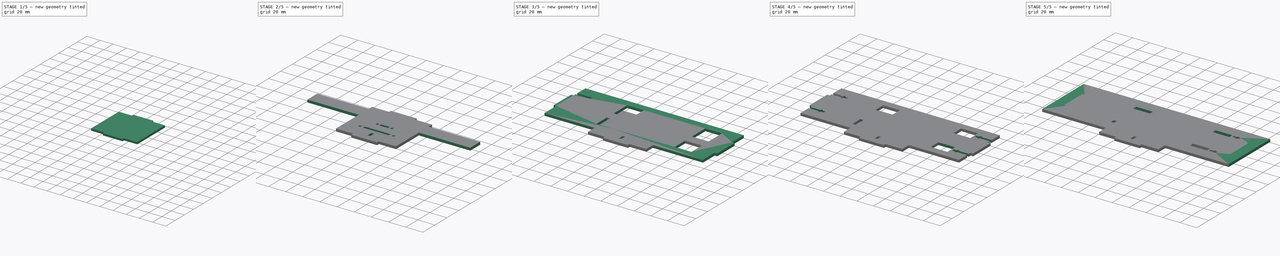
[diagram: build sequence overview — one tinted view per stage of 5, left to right]
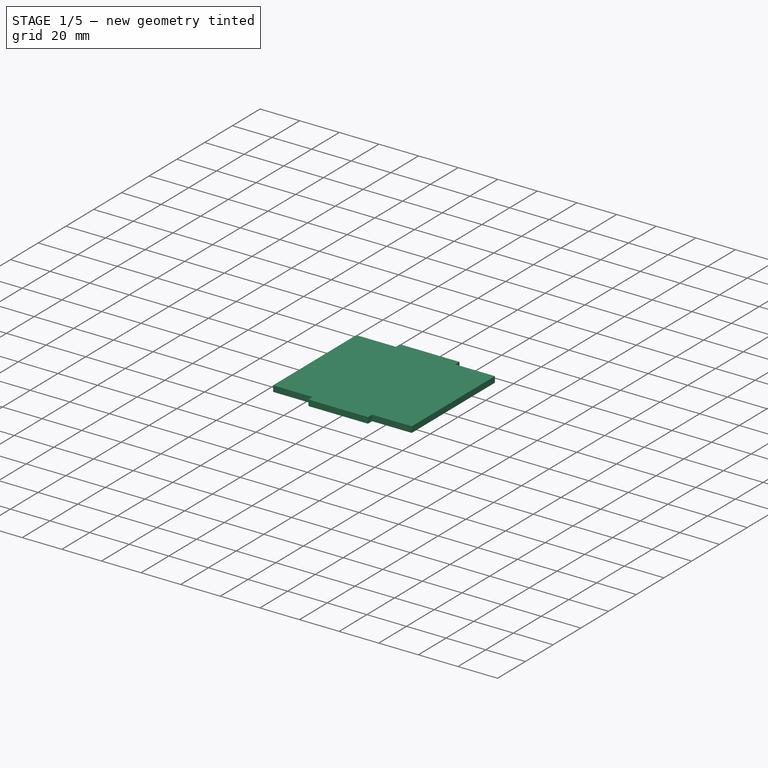
[diagram: stage 1 of 5 — iso view after this stage's code; geometry added in this stage tinted green]
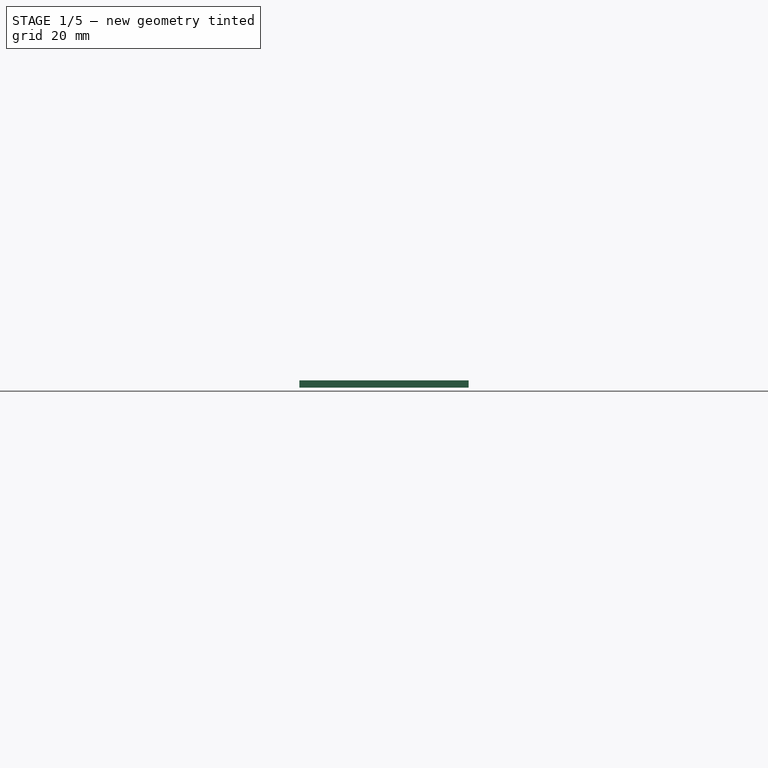
[diagram: stage 1 of 5 — front view after this stage's code; geometry added in this stage tinted green]
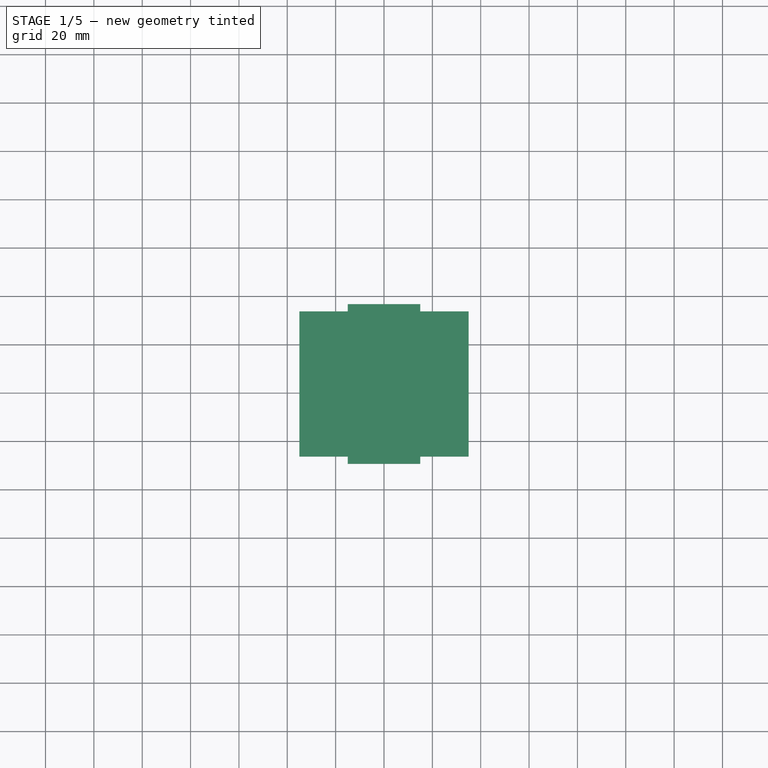
[diagram: stage 1 of 5 — top view after this stage's code; geometry added in this stage tinted green]
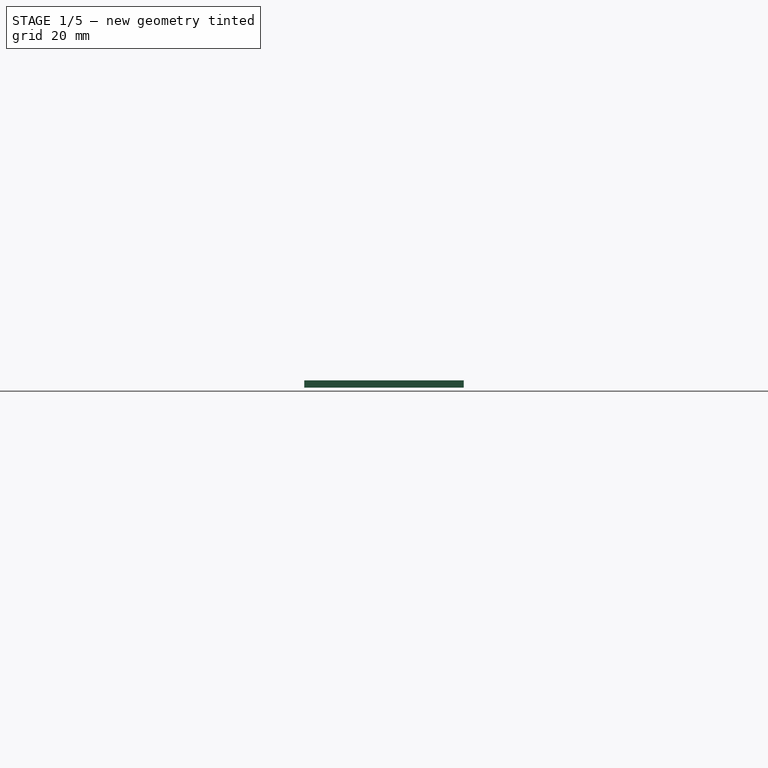
[diagram: stage 1 of 5 — right view after this stage's code; geometry added in this stage tinted green]
FCSTD DOCUMENT  (FreeCAD 0.18.1R)
Label: frame
License: All rights reserved
LicenseURL: http://en.wikipedia.org/wiki/All_rights_reserved
objects: Sketcher::SketchObject×29, PartDesign::Pad×14, PartDesign::Pocket×14, PartDesign::Mirrored×11, TechDraw::DrawViewPart×8, PartDesign::Body×6, PartDesign::MultiTransform×4, TechDraw::DrawSVGTemplate×2, TechDraw::DrawPage×2, PartDesign::Hole×1, Spreadsheet::Sheet×1
note: 108 computed .brp shape members not serialized (recipe doc carries the construction recipe); baked Part::Feature solids carry a one-line shape summary decoded from their .brp

FEATURE [Sketcher::SketchObject] Sketch007
  MapMode = 5
  Support = -> [XY_Plane003]
  expr: Constraints[10] = (carriage#values.height + 1) / 2
  sketch-geometry (4):
    g0: LineSegment StartX=-35 StartY=13.75 StartZ=0 EndX=35 EndY=13.75 EndZ=0
    g1: LineSegment StartX=35 StartY=13.75 StartZ=0 EndX=35 EndY=-46.25 EndZ=0
    g2: LineSegment StartX=35 StartY=-46.25 StartZ=0 EndX=-35 EndY=-46.25 EndZ=0
    g3: LineSegment StartX=-35 StartY=-46.25 StartZ=0 EndX=-35 EndY=13.75 EndZ=0
  constraints (11):
    c: Coincident(g0,g1)
    c: Coincident(g1,g2)
    c: Coincident(g2,g3)
    c: Coincident(g3,g0)
    c: Horizontal(g0)
    c: Vertical(g1)
    c: Vertical(g3)
    c: Symmetric(g2,g1,g-2)
    c: DistanceX(g0,g0) = 70
    c: DistanceY(g3,g3) = 60
    c: DistanceY(g-1,g0) = 13.75
FEATURE [PartDesign::Pad] Pad004
  Length = 3
  Length2 = 100
  Profile = -> Sketch007
  Refine = true
  Type = 0
FEATURE [Sketcher::SketchObject] Sketch008
  ExternalGeometry = -> [Pad004]
  MapMode = 5
  Placement = pos=(0,-46.25,0) rot=(1,0,0;1.5708rad)
  Support = -> [Pad004]
  sketch-geometry (4):
    g0: LineSegment StartX=-15 StartY=3 StartZ=0 EndX=15 EndY=3 EndZ=0
    g1: LineSegment StartX=15 StartY=3 StartZ=0 EndX=15 EndY=0 EndZ=0
    g2: LineSegment StartX=15 StartY=0 StartZ=0 EndX=-15 EndY=0 EndZ=0
    g3: LineSegment StartX=-15 StartY=0 StartZ=0 EndX=-15 EndY=3 EndZ=0
  constraints (11):
    c: Coincident(g0,g1)
    c: Coincident(g1,g2)
    c: Coincident(g2,g3)
    c: Coincident(g3,g0)
    c: Horizontal(g0)
    c: Vertical(g1)
    c: Vertical(g3)
    c: Symmetric(g2,g1,g-2)
    c: DistanceX(g0,g0) = 30
    c: PointOnObject(g0,g-3)
    c: PointOnObject(g2,g-4)
FEATURE [PartDesign::Pad] Pad005
  BaseFeature = -> Pad004
  Length = 3
  Length2 = 100
  Profile = -> Sketch008
  Refine = true
  Type = 0
FEATURE [Sketcher::SketchObject] Sketch009
  ExternalGeometry = -> [Pad005]
  MapMode = 5
  Placement = pos=(0,13.75,0) rot=(0,0.707107,0.707107;3.14159rad)
  Support = -> [Pad005]
  sketch-geometry (4):
    g0: LineSegment StartX=-15 StartY=3 StartZ=0 EndX=15 EndY=3 EndZ=0
    g1: LineSegment StartX=15 StartY=3 StartZ=0 EndX=15 EndY=0 EndZ=0
    g2: LineSegment StartX=15 StartY=0 StartZ=0 EndX=-15 EndY=0 EndZ=0
    g3: LineSegment StartX=-15 StartY=0 StartZ=0 EndX=-15 EndY=3 EndZ=0
  constraints (11):
    c: Coincident(g0,g1)
    c: Coincident(g1,g2)
    c: Coincident(g2,g3)
    c: Coincident(g3,g0)
    c: Horizontal(g0)
    c: Vertical(g1)
    c: Vertical(g3)
    c: Symmetric(g2,g1,g-2)
    c: DistanceX(g0,g0) = 30
    c: PointOnObject(g0,g-3)
    c: PointOnObject(g2,g-4)
FEATURE [PartDesign::Pad] Pad006
  BaseFeature = -> Pad005
  Length = 3
  Length2 = 100
  Profile = -> Sketch009
  Refine = true
  Type = 0
FEATURE [Sketcher::SketchObject] Sketch013
  MapMode = 5
  Support = -> [XY_Plane004]
  expr: Constraints[10] = (carriage#values.height + 1) / 2
  sketch-geometry (4):
    g0: LineSegment StartX=-35 StartY=13.75 StartZ=0 EndX=35 EndY=13.75 EndZ=0
    g1: LineSegment StartX=35 StartY=13.75 StartZ=0 EndX=35 EndY=-46.25 EndZ=0
    g2: LineSegment StartX=35 StartY=-46.25 StartZ=0 EndX=-35 EndY=-46.25 EndZ=0
    g3: LineSegment StartX=-35 StartY=-46.25 StartZ=0 EndX=-35 EndY=13.75 EndZ=0
  constraints (11):
    c: Coincident(g0,g1)
    c: Coincident(g1,g2)
    c: Coincident(g2,g3)
    c: Coincident(g3,g0)
    c: Horizontal(g0)
    c: Vertical(g1)
    c: Vertical(g3)
    c: Symmetric(g2,g1,g-2)
    c: DistanceX(g0,g0) = 70
    c: DistanceY(g3,g3) = 60
    c: DistanceY(g-1,g0) = 13.75
FEATURE [PartDesign::Pad] Pad007
  Length = 3
  Length2 = 100
  Profile = -> Sketch013
  Refine = true
  Type = 0
FEATURE [Sketcher::SketchObject] Sketch012
  ExternalGeometry = -> [Pad007]
  MapMode = 5
  Placement = pos=(0,-46.25,0) rot=(1,0,0;1.5708rad)
  Support = -> [Pad007]
  sketch-geometry (4):
    g0: LineSegment StartX=-15 StartY=3 StartZ=0 EndX=15 EndY=3 EndZ=0
    g1: LineSegment StartX=15 StartY=3 StartZ=0 EndX=15 EndY=0 EndZ=0
    g2: LineSegment StartX=15 StartY=0 StartZ=0 EndX=-15 EndY=0 EndZ=0
    g3: LineSegment StartX=-15 StartY=0 StartZ=0 EndX=-15 EndY=3 EndZ=0
  constraints (11):
    c: Coincident(g0,g1)
    c: Coincident(g1,g2)
    c: Coincident(g2,g3)
    c: Coincident(g3,g0)
    c: Horizontal(g0)
    c: Vertical(g1)
    c: Vertical(g3)
    c: Symmetric(g2,g1,g-2)
    c: DistanceX(g0,g0) = 30
    c: PointOnObject(g0,g-3)
    c: PointOnObject(g2,g-4)
FEATURE [PartDesign::Pad] Pad009
  BaseFeature = -> Pad007
  Length = 3
  Length2 = 100
  Profile = -> Sketch012
  Refine = true
  Type = 0
FEATURE [Sketcher::SketchObject] Sketch011
  ExternalGeometry = -> [Pad009]
  MapMode = 5
  Placement = pos=(0,13.75,0) rot=(0,0.707107,0.707107;3.14159rad)
  Support = -> [Pad009]
  sketch-geometry (4):
    g0: LineSegment StartX=-15 StartY=3 StartZ=0 EndX=15 EndY=3 EndZ=0
    g1: LineSegment StartX=15 StartY=3 StartZ=0 EndX=15 EndY=0 EndZ=0
    g2: LineSegment StartX=15 StartY=0 StartZ=0 EndX=-15 EndY=0 EndZ=0
    g3: LineSegment StartX=-15 StartY=0 StartZ=0 EndX=-15 EndY=3 EndZ=0
  constraints (11):
    c: Coincident(g0,g1)
    c: Coincident(g1,g2)
    c: Coincident(g2,g3)
    c: Coincident(g3,g0)
    c: Horizontal(g0)
    c: Vertical(g1)
    c: Vertical(g3)
    c: Symmetric(g2,g1,g-2)
    c: DistanceX(g0,g0) = 30
    c: PointOnObject(g0,g-3)
    c: PointOnObject(g2,g-4)
FEATURE [PartDesign::Pad] Pad008
  BaseFeature = -> Pad009
  Length = 3
  Length2 = 100
  Profile = -> Sketch011
  Refine = true
  Type = 0
FEATURE [Sketcher::SketchObject] Sketch016
  MapMode = 5
  Placement = pos=(0,0,3) rot=(0,0,1;0rad)
  sketch-geometry (2):
    g0: GeomPoint X=0 Y=0 Z=0
    g1: Circle CenterX=0 CenterY=0 CenterZ=0 NormalX=0 NormalY=0 NormalZ=1 AngleXU=0 Radius=3.25
  constraints (3):
    c: Coincident(g0,g-1)
    c: Coincident(g1,g0)
    c: Diameter(g1) = 6.5
FEATURE [PartDesign::Hole] Hole
  BaseFeature = -> Pad008
  Depth = 25
  DepthType = 0
  Diameter = 8.8
  DrillPoint = 1
  DrillPointAngle = 118
  HoleCutCountersinkAngle = 90
  HoleCutDepth = 0
  HoleCutDiameter = 8
  HoleCutType = 0
  ModelActualThread = false
  Profile = -> Sketch016
  Refine = true
  Tapered = false
  TaperedAngle = 90
  ThreadAngle = 0
  ThreadClass = 0
  ThreadCutOffInner = 0
  ThreadCutOffOuter = 0
  ThreadDirection = 0
  ThreadFit = 0
  ThreadPitch = 0
  ThreadSize = 8
  ThreadType = 1
  Threaded = false
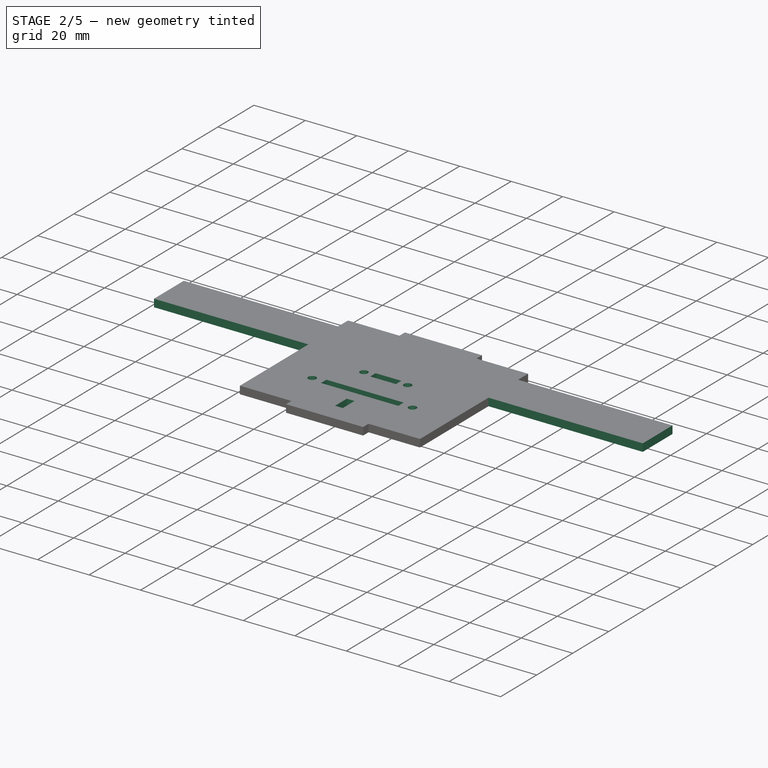
[diagram: stage 2 of 5 — iso view after this stage's code; geometry added in this stage tinted green]
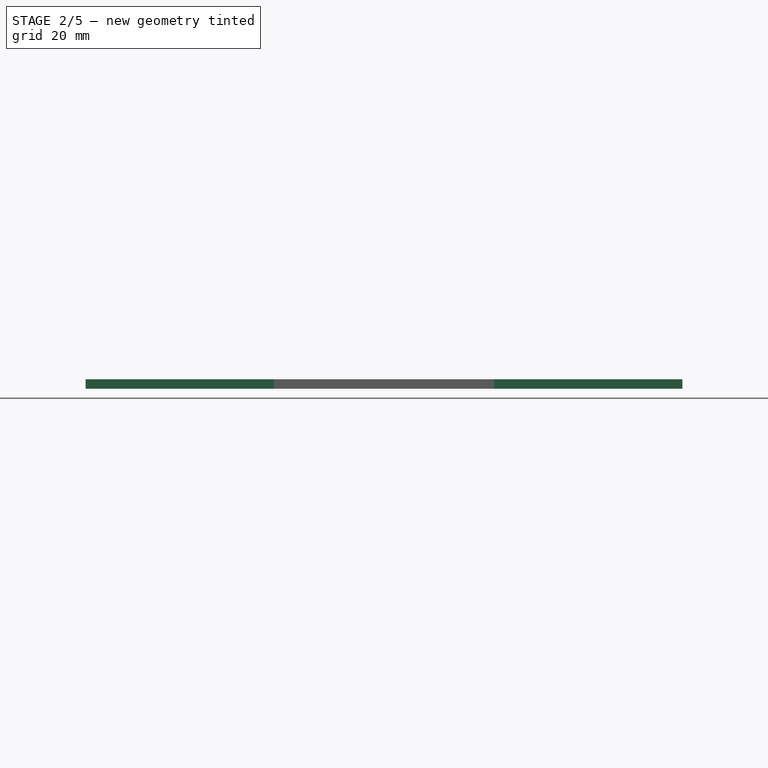
[diagram: stage 2 of 5 — front view after this stage's code; geometry added in this stage tinted green]
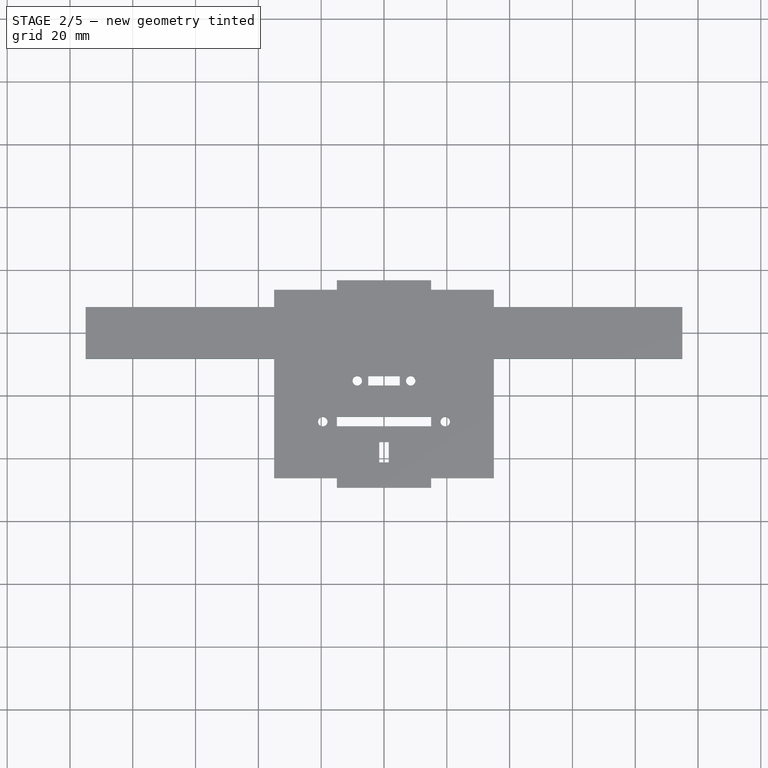
[diagram: stage 2 of 5 — top view after this stage's code; geometry added in this stage tinted green]
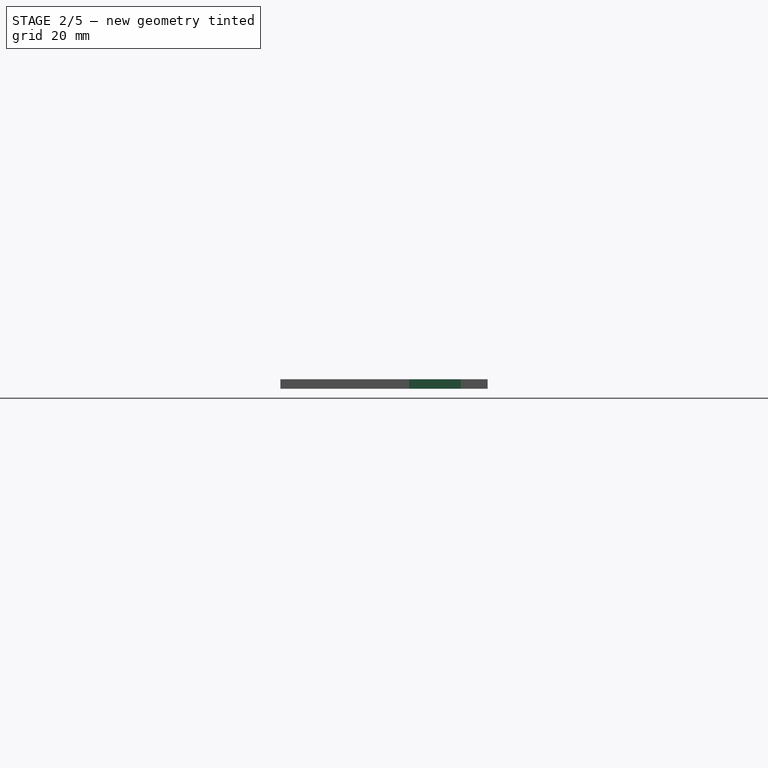
[diagram: stage 2 of 5 — right view after this stage's code; geometry added in this stage tinted green]
FEATURE [Sketcher::SketchObject] Sketch010
  ExternalGeometry = -> [Pad006]
  MapMode = 5
  Placement = pos=(0,0,3) rot=(0,0,1;0rad)
  Support = -> [Pad006]
  expr: Constraints[26] = carriage#values.height + 1
  sketch-geometry (14):
    g0: LineSegment StartX=-5 StartY=-13.75 StartZ=0 EndX=5 EndY=-13.75 EndZ=0
    g1: LineSegment StartX=5 StartY=-13.75 StartZ=0 EndX=5 EndY=-16.75 EndZ=0
    g2: LineSegment StartX=5 StartY=-16.75 StartZ=0 EndX=-5 EndY=-16.75 EndZ=0
    g3: LineSegment StartX=-5 StartY=-16.75 StartZ=0 EndX=-5 EndY=-13.75 EndZ=0
    g4: LineSegment StartX=-15 StartY=-26.75 StartZ=0 EndX=15 EndY=-26.75 EndZ=0
    g5: LineSegment StartX=15 StartY=-26.75 StartZ=0 EndX=15 EndY=-29.75 EndZ=0
    g6: LineSegment StartX=15 StartY=-29.75 StartZ=0 EndX=-15 EndY=-29.75 EndZ=0
    g7: LineSegment StartX=-15 StartY=-29.75 StartZ=0 EndX=-15 EndY=-26.75 EndZ=0
    g8: Circle CenterX=8.5 CenterY=-15.25 CenterZ=0 NormalX=0 NormalY=0 NormalZ=1 AngleXU=0 Radius=1.5
    g9: Circle CenterX=-8.5 CenterY=-15.25 CenterZ=0 NormalX=0 NormalY=0 NormalZ=1 AngleXU=0 Radius=1.5
    g10: LineSegment [constr] StartX=8.5 StartY=-15.25 StartZ=0 EndX=-8.5 EndY=-15.25 EndZ=0
    g11: Circle CenterX=19.5 CenterY=-28.25 CenterZ=0 NormalX=0 NormalY=0 NormalZ=1 AngleXU=0 Radius=1.5
    g12: Circle CenterX=-19.5 CenterY=-28.25 CenterZ=0 NormalX=0 NormalY=0 NormalZ=1 AngleXU=0 Radius=1.5
    g13: LineSegment [constr] StartX=-19.5 StartY=-28.25 StartZ=0 EndX=19.5 EndY=-28.25 EndZ=0
  constraints (34):
    c: Coincident(g0,g1)
    c: Coincident(g1,g2)
    c: Coincident(g2,g3)
    c: Coincident(g3,g0)
    c: Horizontal(g0)
    c: Vertical(g3)
    c: Symmetric(g2,g1,g-2)
    c: DistanceX(g0,g0) = 10
    c: DistanceY(g1,g1) = 3
    c: Coincident(g4,g5)
    c: Coincident(g5,g6)
    c: Coincident(g6,g7)
    c: Coincident(g7,g4)
    c: Horizontal(g4)
    c: Vertical(g7)
    c: Symmetric(g6,g5,g-2)
    c: DistanceX(g4,g4) = 30
    c: DistanceY(g7,g7) = 3
    c: DistanceY(g4,g2) = 10
    c: Symmetric(g8,g9,g-2)
    c: Diameter(g8) = 3
    c: Equal(g8,g9)
    c: DistanceX(g0,g8) = 3.5
    c: Coincident(g10,g8)
    c: Coincident(g10,g9)
    c: Symmetric(g0,g1,g10)
    c: DistanceY(g0,g-3) = 27.5
    c: Diameter(g11) = 3
    c: Equal(g11,g12)
    c: Coincident(g13,g12)
    c: Coincident(g13,g11)
    c: Symmetric(g4,g5,g13)
    c: Symmetric(g11,g12,g-2)
    c: DistanceX(g12,g6) = 4.5
FEATURE [PartDesign::Pocket] Pocket001
  BaseFeature = -> Pad006
  Length = 5
  Length2 = 100
  Profile = -> Sketch010
  Refine = true
  Type = 1
FEATURE [Sketcher::SketchObject] Sketch015
  ExternalGeometry = -> [Pocket001]
  MapMode = 5
  Placement = pos=(0,0,3) rot=(0,0,1;0rad)
  Support = -> [Pocket001]
  sketch-geometry (7):
    g0: Circle CenterX=20.6 CenterY=8.75 CenterZ=0 NormalX=0 NormalY=0 NormalZ=1 AngleXU=0 Radius=1.5
    g1: Circle CenterX=20.6 CenterY=-8.75 CenterZ=0 NormalX=0 NormalY=0 NormalZ=1 AngleXU=0 Radius=1.5
    g2: Circle CenterX=-13.8 CenterY=0 CenterZ=0 NormalX=0 NormalY=0 NormalZ=1 AngleXU=0 Radius=1.5
    g3: LineSegment StartX=27.6 StartY=7 StartZ=0 EndX=35 EndY=7 EndZ=0
    g4: LineSegment StartX=35 StartY=7 StartZ=0 EndX=35 EndY=-7 EndZ=0
    g5: LineSegment StartX=35 StartY=-7 StartZ=0 EndX=27.6 EndY=-7 EndZ=0
    g6: LineSegment StartX=27.6 StartY=-7 StartZ=0 EndX=27.6 EndY=7 EndZ=0
  constraints (19):
    c: DistanceX(g-1,g0) = 20.6
    c: Equal(g0,g1)
    c: Symmetric(g0,g1,g-1)
    c: DistanceY(g1,g0) = 17.5
    c: PointOnObject(g2,g-1)
    c: DistanceX(g2,g-1) = 13.8
    c: Equal(g2,g1)
    c: Diameter(g0) = 3
    c: Coincident(g3,g4)
    c: Coincident(g4,g5)
    c: Horizontal(g5)
    c: Vertical(g4)
    c: DistanceX(g0,g3) = 7
    c: Horizontal(g3)
    c: Coincident(g6,g3)
    c: Coincident(g5,g6)
    c: PointOnObject(g3,g-4)
    c: Symmetric(g3,g5,g-1)
    c: DistanceY(g6,g6) = 14
FEATURE [PartDesign::Pocket] Pocket003
  BaseFeature = -> Pocket001
  Length = 5
  Length2 = 100
  Profile = -> Sketch015
  Refine = true
  Type = 1
FEATURE [PartDesign::Body] Body005  label="Bottom panel"
  Group = -> [Sketch018,Pad010,Sketch019,Pad011,Sketch020,Pad012,Sketch021,Pocket005,Sketch024,Pocket008,Sketch025,MultiTransform002,Mirrored007,Mirrored008,Pocket009,MultiTransform003,Mirrored009,Mirrored010]
  Origin = -> Origin005
  Placement = pos=(210,-8,0) rot=(0,0,1;0rad)
  Tip = -> MultiTransform003
FEATURE [TechDraw::DrawViewPart] View004
  CoarseView = false
  Direction = (0,0,1)
  Focus = 100
  HardHidden = false
  IsoCount = 0
  IsoHidden = false
  IsoVisible = false
  LockPosition = false
  Perspective = false
  Rotation = 0
  ScaleType = 0
  SeamHidden = false
  SeamVisible = false
  SmoothHidden = false
  SmoothVisible = false
  Source = -> [Body005]
  X = 117.768
  Y = 50.7927
FEATURE [Sketcher::SketchObject] Sketch026
  ExternalGeometry = -> [Hole]
  MapMode = 5
  Placement = pos=(0,0,3) rot=(0,0,1;0rad)
  Support = -> [Pad006]
  expr: Constraints[33] = carriage#values.height + 1
  sketch-geometry (14):
    g0: LineSegment StartX=-5 StartY=-13.75 StartZ=0 EndX=5 EndY=-13.75 EndZ=0
    g1: LineSegment StartX=5 StartY=-13.75 StartZ=0 EndX=5 EndY=-16.75 EndZ=0
    g2: LineSegment StartX=5 StartY=-16.75 StartZ=0 EndX=-5 EndY=-16.75 EndZ=0
    g3: LineSegment StartX=-5 StartY=-16.75 StartZ=0 EndX=-5 EndY=-13.75 EndZ=0
    g4: LineSegment StartX=-15 StartY=-26.75 StartZ=0 EndX=15 EndY=-26.75 EndZ=0
    g5: LineSegment StartX=15 StartY=-26.75 StartZ=0 EndX=15 EndY=-29.75 EndZ=0
    g6: LineSegment StartX=15 StartY=-29.75 StartZ=0 EndX=-15 EndY=-29.75 EndZ=0
    g7: LineSegment StartX=-15 StartY=-29.75 StartZ=0 EndX=-15 EndY=-26.75 EndZ=0
    g8: Circle CenterX=8.5 CenterY=-15.25 CenterZ=0 NormalX=0 NormalY=0 NormalZ=1 AngleXU=0 Radius=1.5
    g9: Circle CenterX=-8.5 CenterY=-15.25 CenterZ=0 NormalX=0 NormalY=0 NormalZ=1 AngleXU=0 Radius=1.5
    g10: LineSegment [constr] StartX=8.5 StartY=-15.25 StartZ=0 EndX=-8.5 EndY=-15.25 EndZ=0
    g11: Circle CenterX=19.5 CenterY=-28.25 CenterZ=0 NormalX=0 NormalY=0 NormalZ=1 AngleXU=0 Radius=1.5
    g12: Circle CenterX=-19.5 CenterY=-28.25 CenterZ=0 NormalX=0 NormalY=0 NormalZ=1 AngleXU=0 Radius=1.5
    g13: LineSegment [constr] StartX=-19.5 StartY=-28.25 StartZ=0 EndX=19.5 EndY=-28.25 EndZ=0
  constraints (35):
    c: Coincident(g0,g1)
    c: Coincident(g1,g2)
    c: Coincident(g2,g3)
    c: Coincident(g3,g0)
    c: Horizontal(g0)
    c: Vertical(g3)
    c: Symmetric(g2,g1,g-2)
    c: DistanceX(g0,g0) = 10
    c: DistanceY(g1,g1) = 3
    c: Coincident(g4,g5)
    c: Coincident(g5,g6)
    c: Coincident(g6,g7)
    c: Coincident(g7,g4)
    c: Horizontal(g4)
    c: Vertical(g7)
    c: Symmetric(g6,g5,g-2)
    c: DistanceX(g4,g4) = 30
    c: DistanceY(g7,g7) = 3
    c: DistanceY(g4,g2) = 10
    c: Symmetric(g8,g9,g-2)
    c: Diameter(g8) = 3
    c: Equal(g8,g9)
    c: DistanceX(g0,g8) = 3.5
    c: Coincident(g10,g8)
    c: Coincident(g10,g9)
    c: Symmetric(g0,g1,g10)
    c: Diameter(g11) = 3
    c: Equal(g11,g12)
    c: Coincident(g13,g12)
    c: Coincident(g13,g11)
    c: Symmetric(g4,g5,g13)
    c: Symmetric(g11,g12,g-2)
    c: DistanceX(g12,g6) = 4.5
    c: DistanceY(g0,g-3) = 27.5
    c: DistanceY(g-4,g6) = 16.5
FEATURE [PartDesign::Pocket] Pocket010
  BaseFeature = -> Hole
  Length = 5
  Length2 = 100
  Profile = -> Sketch026
  Refine = true
  Type = 1
FEATURE [Sketcher::SketchObject] Sketch027
  ExternalGeometry = -> [Pocket003]
  MapMode = 5
  Placement = pos=(0,0,3) rot=(0,0,1;0rad)
  Support = -> [Pocket003]
  sketch-geometry (4):
    g0: LineSegment StartX=-1.5 StartY=-34.75 StartZ=0 EndX=1.5 EndY=-34.75 EndZ=0
    g1: LineSegment StartX=1.5 StartY=-34.75 StartZ=0 EndX=1.5 EndY=-41.25 EndZ=0
    g2: LineSegment StartX=1.5 StartY=-41.25 StartZ=0 EndX=-1.5 EndY=-41.25 EndZ=0
    g3: LineSegment StartX=-1.5 StartY=-41.25 StartZ=0 EndX=-1.5 EndY=-34.75 EndZ=0
  constraints (13):
    c: Coincident(g0,g1)
    c: Coincident(g1,g2)
    c: Coincident(g2,g3)
    c: Coincident(g3,g0)
    c: Horizontal(g0)
    c: Vertical(g1)
    c: Vertical(g3)
    c: Symmetric(g2,g1,g-2)
    c: DistanceX(g0,g0) = 3
    c: DistanceY(g-3,g2) = 5
    c: DistanceY(g1,g0) = 6.5  'support_tab_height'
    c: DistanceY(g0,g-4) = 5
    c: DistanceY(g-3,g-4) = 16.5  'support_height'
FEATURE [PartDesign::Pocket] Pocket011
  BaseFeature = -> Pocket003
  Length = 5
  Length2 = 100
  Profile = -> Sketch027
  Refine = true
  Type = 1
FEATURE [PartDesign::Body] Body003  label="Front panel"
  Group = -> [Sketch007,Pad004,Sketch008,Pad005,Sketch009,Pad006,Sketch010,Pocket001,Sketch015,Pocket003,Sketch027,Pocket011]
  Origin = -> Origin003
  Placement = pos=(69,99,0) rot=(0,0,1;0rad)
  Tip = -> Pocket011
FEATURE [TechDraw::DrawViewPart] View002
  CoarseView = false
  Direction = (0,0,1)
  Focus = 100
  HardHidden = false
  IsoCount = 0
  IsoHidden = false
  IsoVisible = false
  LockPosition = false
  Perspective = false
  Rotation = 0
  ScaleType = 0
  SeamHidden = false
  SeamVisible = false
  SmoothHidden = false
  SmoothVisible = false
  Source = -> [Body003]
  X = 261.61
  Y = 169.451
FEATURE [Sketcher::SketchObject] Sketch028
  ExternalGeometry = -> [Pocket010]
  MapMode = 5
  Placement = pos=(0,0,3) rot=(0,0,1;0rad)
  Support = -> [Pocket003]
  sketch-geometry (4):
    g0: LineSegment StartX=-1.5 StartY=-34.75 StartZ=0 EndX=1.5 EndY=-34.75 EndZ=0
    g1: LineSegment StartX=1.5 StartY=-34.75 StartZ=0 EndX=1.5 EndY=-41.25 EndZ=0
    g2: LineSegment StartX=1.5 StartY=-41.25 StartZ=0 EndX=-1.5 EndY=-41.25 EndZ=0
    g3: LineSegment StartX=-1.5 StartY=-41.25 StartZ=0 EndX=-1.5 EndY=-34.75 EndZ=0
  constraints (12):
    c: Coincident(g0,g1)
    c: Coincident(g1,g2)
    c: Coincident(g2,g3)
    c: Coincident(g3,g0)
    c: Horizontal(g0)
    c: Vertical(g1)
    c: Vertical(g3)
    c: Symmetric(g2,g1,g-2)
    c: DistanceX(g0,g0) = 3
    c: DistanceY(g1,g0) = 6.5  'support_tab_height'
    c: DistanceY(g0,g-3) = 5
    c: DistanceY(g-4,g2) = 5
FEATURE [PartDesign::Pocket] Pocket012
  BaseFeature = -> Pocket010
  Length = 5
  Length2 = 100
  Profile = -> Sketch028
  Refine = true
  Type = 1
FEATURE [Sketcher::SketchObject] Sketch029
  MapMode = 5
  Support = -> [XY_Plane006]
  expr: Constraints[9] = Sketch027.Constraints.support_height
  expr: Constraints[8] = values.run_length + values.motor_length
  sketch-geometry (4):
    g0: LineSegment StartX=-95 StartY=8.25 StartZ=0 EndX=95 EndY=8.25 EndZ=0
    g1: LineSegment StartX=95 StartY=8.25 StartZ=0 EndX=95 EndY=-8.25 EndZ=0
    g2: LineSegment StartX=95 StartY=-8.25 StartZ=0 EndX=-95 EndY=-8.25 EndZ=0
    g3: LineSegment StartX=-95 StartY=-8.25 StartZ=0 EndX=-95 EndY=8.25 EndZ=0
  constraints (11):
    c: Coincident(g0,g1)
    c: Coincident(g1,g2)
    c: Coincident(g2,g3)
    c: Coincident(g3,g0)
    c: Horizontal(g0)
    c: Horizontal(g2)
    c: Vertical(g1)
    c: Vertical(g3)
    c: DistanceX(g0,g0) = 190
    c: DistanceY(g3,g3) = 16.5
    c: Symmetric(g2,g0,g-1)
FEATURE [PartDesign::Pad] Pad013
  Length = 3
  Length2 = 100
  Profile = -> Sketch029
  Refine = true
  Type = 0
FEATURE [PartDesign::Body] Body006  label="Support panel"
  Group = -> [Sketch029,Pad013,Sketch030,Pad014,Mirrored011,Sketch031,Pocket013]
  Origin = -> Origin006
  Placement = pos=(215,-58,0) rot=(0,0,1;0rad)
  Tip = -> Pocket013
FEATURE [TechDraw::DrawSVGTemplate] Template001
  Height = 210
  Orientation = 1
  Width = 297
FEATURE [TechDraw::DrawViewPart] View005  label="SupportView"
  CoarseView = false
  Direction = (0,0,1)
  Focus = 100
  HardHidden = false
  IsoCount = 0
  IsoHidden = false
  IsoVisible = false
  LockPosition = false
  Perspective = false
  Rotation = 0
  ScaleType = 0
  SeamHidden = false
  SeamVisible = false
  SmoothHidden = false
  SmoothVisible = false
  Source = -> [Body006]
  X = 165.146
  Y = 49.0854
FEATURE [TechDraw::DrawViewPart] View007  label="FrontPanelView"
  CoarseView = false
  Direction = (0,0,1)
  Focus = 100
  HardHidden = false
  IsoCount = 0
  IsoHidden = false
  IsoVisible = false
  LockPosition = false
  Perspective = false
  Rotation = 0
  ScaleType = 0
  SeamHidden = false
  SeamVisible = false
  SmoothHidden = false
  SmoothVisible = false
  Source = -> [Body003]
  X = 146.793
  Y = 96.8902
FEATURE [Sketcher::SketchObject] Sketch032
  MapMode = 5
  Placement = pos=(0,0,3) rot=(0,0,1;0rad)
  Support = -> [Pocket012]
  sketch-geometry (2):
    g0: Circle CenterX=-18.25 CenterY=0 CenterZ=0 NormalX=0 NormalY=0 NormalZ=1 AngleXU=0 Radius=2
    g1: Circle CenterX=18.25 CenterY=0 CenterZ=0 NormalX=0 NormalY=0 NormalZ=1 AngleXU=0 Radius=2
  constraints (5):
    c: Symmetric(g0,g1,g-1)
    c: PointOnObject(g0,g-1)
    c: Equal(g0,g1)
    c: Diameter(g0) = 4
    c: DistanceX(g0,g1) = 36.5
FEATURE [PartDesign::Pocket] Pocket014
  BaseFeature = -> Pocket012
  Length = 5
  Length2 = 100
  Profile = -> Sketch032
  Refine = true
  Type = 1
FEATURE [PartDesign::Body] Body004  label="Back panel"
  Group = -> [Sketch013,Pad007,Sketch012,Pad009,Sketch011,Pad008,Sketch016,Hole,Sketch026,Pocket010,Sketch028,Pocket012,Sketch032,Pocket014]
  Origin = -> Origin004
  Placement = pos=(69,23,0) rot=(0,0,1;0rad)
  Tip = -> Pocket014
FEATURE [TechDraw::DrawViewPart] View003
  CoarseView = false
  Direction = (0,0,1)
  Focus = 100
  HardHidden = false
  IsoCount = 0
  IsoHidden = false
  IsoVisible = false
  LockPosition = false
  Perspective = false
  Rotation = 0
  ScaleType = 0
  SeamHidden = false
  SeamVisible = false
  SmoothHidden = false
  SmoothVisible = false
  Source = -> [Body004]
  X = 260.329
  Y = 90.4878
FEATURE [TechDraw::DrawPage] Page  label="Frame Drawing"
  KeepUpdated = true
  ProjectionType = 0
  Template = -> Template
  Views = -> [View,View001,View002,View003,View004]
FEATURE [TechDraw::DrawViewPart] View006  label="BackPanelView"
  CoarseView = false
  Direction = (0,0,1)
  Focus = 100
  HardHidden = false
  IsoCount = 0
  IsoHidden = false
  IsoVisible = false
  LockPosition = false
  Perspective = false
  Rotation = 0
  ScaleType = 0
  SeamHidden = false
  SeamVisible = false
  SmoothHidden = false
  SmoothVisible = false
  Source = -> [Body004]
  X = 227.463
  Y = 96.4634
FEATURE [TechDraw::DrawPage] Page001
  KeepUpdated = true
  ProjectionType = 0
  Template = -> Template001
  Views = -> [View005,View006,View007]
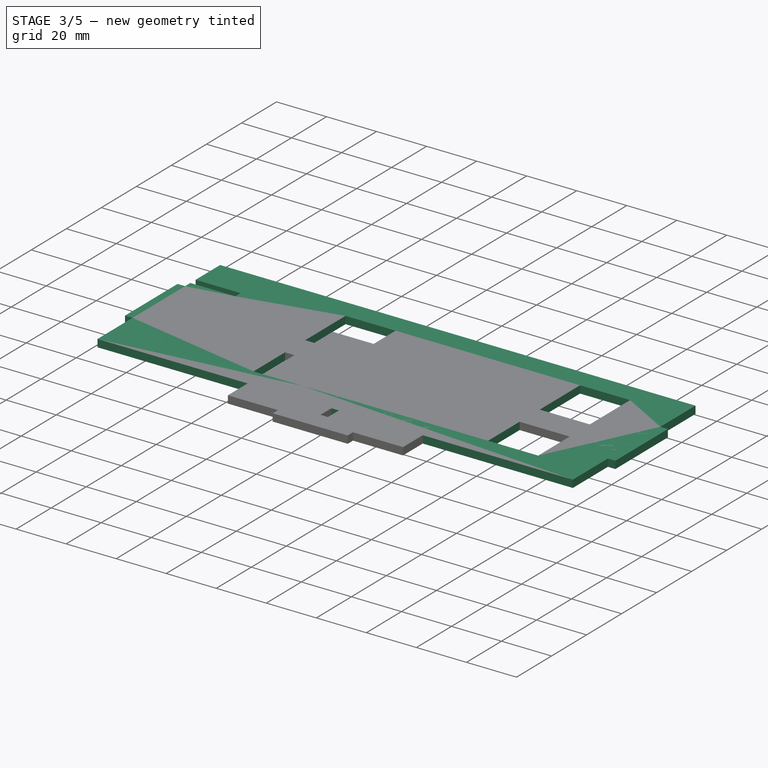
[diagram: stage 3 of 5 — iso view after this stage's code; geometry added in this stage tinted green]
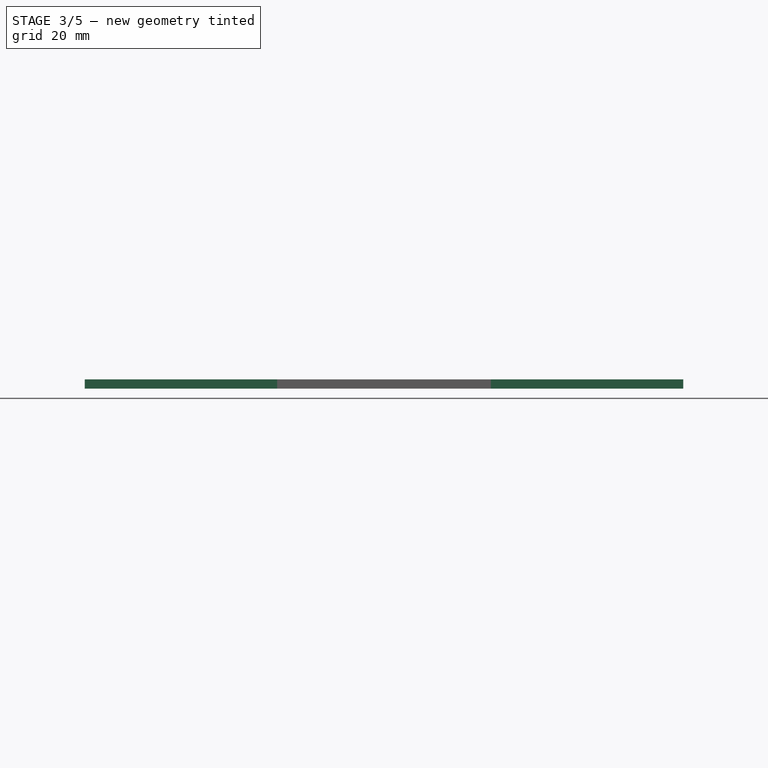
[diagram: stage 3 of 5 — front view after this stage's code; geometry added in this stage tinted green]
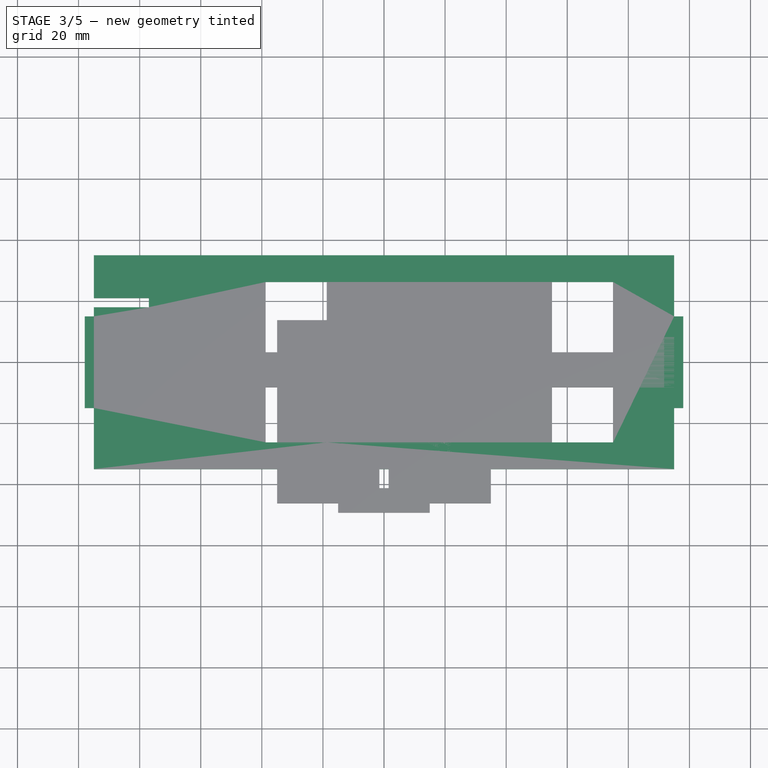
[diagram: stage 3 of 5 — top view after this stage's code; geometry added in this stage tinted green]
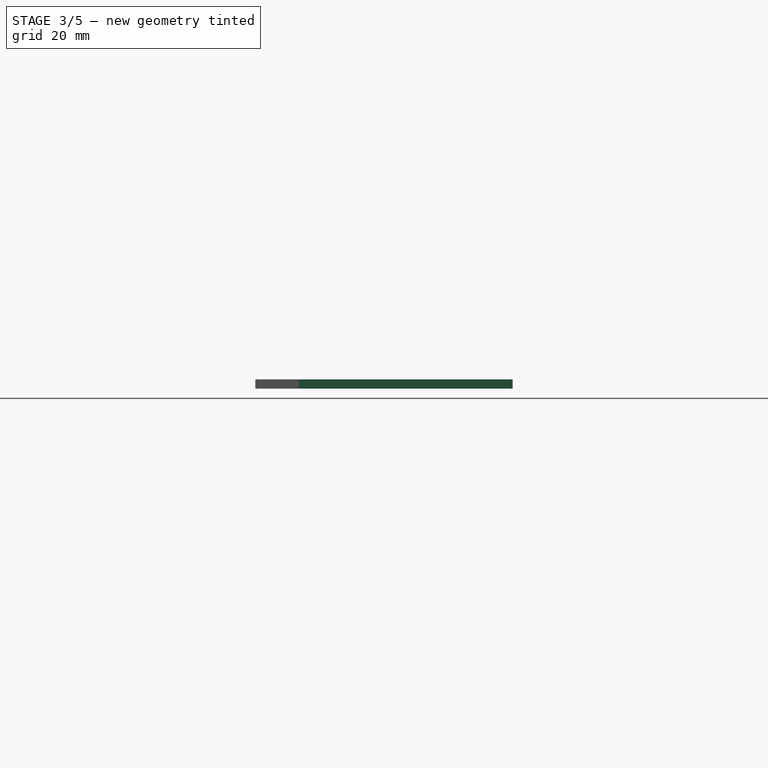
[diagram: stage 3 of 5 — right view after this stage's code; geometry added in this stage tinted green]
FEATURE [PartDesign::Body] Body  label="Top panel"
  Group = -> [Sketch,Pad,Sketch001,Pocket,Mirrored,Sketch017,Pocket004]
  Origin = -> Origin
  Placement = pos=(217,64,0) rot=(0,0,1;0rad)
  Tip = -> Pocket004
FEATURE [Sketcher::SketchObject] Sketch018
  MapMode = 5
  Support = -> [XY_Plane005]
  expr: Constraints[10] = values.width
  sketch-geometry (4):
    g0: LineSegment StartX=-95 StartY=35 StartZ=0 EndX=95 EndY=35 EndZ=0
    g1: LineSegment StartX=95 StartY=35 StartZ=0 EndX=95 EndY=-35 EndZ=0
    g2: LineSegment StartX=95 StartY=-35 StartZ=0 EndX=-95 EndY=-35 EndZ=0
    g3: LineSegment StartX=-95 StartY=-35 StartZ=0 EndX=-95 EndY=35 EndZ=0
  constraints (11):
    c: Coincident(g0,g1)
    c: Coincident(g1,g2)
    c: Coincident(g2,g3)
    c: Coincident(g3,g0)
    c: Horizontal(g0)
    c: Horizontal(g2)
    c: Vertical(g1)
    c: Vertical(g3)
    c: Symmetric(g2,g0,g-1)
    c: DistanceX(g0,g0) = 190
    c: DistanceY(g3,g3) = 70
FEATURE [PartDesign::Pad] Pad010
  Length = 3
  Length2 = 100
  Profile = -> Sketch018
  Refine = true
  Type = 0
FEATURE [Sketcher::SketchObject] Sketch019
  ExternalGeometry = -> [Pad010]
  MapMode = 5
  Placement = pos=(95,0,0) rot=(0.57735,0.57735,0.57735;2.0944rad)
  Support = -> [Pad010]
  sketch-geometry (4):
    g0: LineSegment StartX=-15 StartY=3 StartZ=0 EndX=15 EndY=3 EndZ=0
    g1: LineSegment StartX=15 StartY=3 StartZ=0 EndX=15 EndY=-9e-16 EndZ=0
    g2: LineSegment StartX=15 StartY=-9e-16 StartZ=0 EndX=-15 EndY=0 EndZ=0
    g3: LineSegment StartX=-15 StartY=0 StartZ=0 EndX=-15 EndY=3 EndZ=0
  constraints (11):
    c: Coincident(g0,g1)
    c: Coincident(g1,g2)
    c: Coincident(g2,g3)
    c: Coincident(g3,g0)
    c: Horizontal(g0)
    c: Vertical(g1)
    c: Vertical(g3)
    c: Symmetric(g2,g1,g-2)
    c: DistanceX(g0,g0) = 30
    c: PointOnObject(g0,g-3)
    c: PointOnObject(g2,g-4)
FEATURE [PartDesign::Pad] Pad011
  BaseFeature = -> Pad010
  Length = 3
  Length2 = 100
  Profile = -> Sketch019
  Refine = true
  Type = 0
FEATURE [Sketcher::SketchObject] Sketch020
  ExternalGeometry = -> [Pad011]
  MapMode = 5
  Placement = pos=(-95,0,0) rot=(0.57735,-0.57735,-0.57735;2.0944rad)
  Support = -> [Pad011]
  sketch-geometry (4):
    g0: LineSegment StartX=-15 StartY=3 StartZ=0 EndX=15 EndY=3 EndZ=0
    g1: LineSegment StartX=15 StartY=3 StartZ=0 EndX=15 EndY=0 EndZ=0
    g2: LineSegment StartX=15 StartY=0 StartZ=0 EndX=-15 EndY=0 EndZ=0
    g3: LineSegment StartX=-15 StartY=0 StartZ=0 EndX=-15 EndY=3 EndZ=0
  constraints (11):
    c: Coincident(g0,g1)
    c: Coincident(g1,g2)
    c: Coincident(g2,g3)
    c: Coincident(g3,g0)
    c: Horizontal(g0)
    c: Vertical(g1)
    c: Vertical(g3)
    c: Symmetric(g2,g1,g-2)
    c: DistanceX(g0,g0) = 30
    c: PointOnObject(g0,g-3)
    c: PointOnObject(g2,g-4)
FEATURE [PartDesign::Pad] Pad012
  BaseFeature = -> Pad011
  Length = 3
  Length2 = 100
  Profile = -> Sketch020
  Refine = true
  Type = 0
FEATURE [Sketcher::SketchObject] Sketch021
  ExternalGeometry = -> [Pad012]
  MapMode = 5
  Placement = pos=(0,0,3) rot=(0,0,1;0rad)
  Support = -> [Pad012]
  sketch-geometry (8):
    g0: LineSegment StartX=-38.75 StartY=26.25 StartZ=0 EndX=-18.75 EndY=26.25 EndZ=0
    g1: LineSegment StartX=-18.75 StartY=26.25 StartZ=0 EndX=-18.75 EndY=-26.25 EndZ=0
    g2: LineSegment StartX=-18.75 StartY=-26.25 StartZ=0 EndX=-38.75 EndY=-26.25 EndZ=0
    g3: LineSegment StartX=-38.75 StartY=-26.25 StartZ=0 EndX=-38.75 EndY=26.25 EndZ=0
    g4: LineSegment StartX=55 StartY=26.25 StartZ=0 EndX=75 EndY=26.25 EndZ=0
    g5: LineSegment StartX=75 StartY=26.25 StartZ=0 EndX=75 EndY=-26.25 EndZ=0
    g6: LineSegment StartX=75 StartY=-26.25 StartZ=0 EndX=55 EndY=-26.25 EndZ=0
    g7: LineSegment StartX=55 StartY=-26.25 StartZ=0 EndX=55 EndY=26.25 EndZ=0
  constraints (24):
    c: Coincident(g0,g1)
    c: Coincident(g1,g2)
    c: Coincident(g2,g3)
    c: Coincident(g3,g0)
    c: Horizontal(g0)
    c: Horizontal(g2)
    c: Vertical(g1)
    c: Vertical(g3)
    c: Coincident(g4,g5)
    c: Coincident(g5,g6)
    c: Coincident(g6,g7)
    c: Coincident(g7,g4)
    c: Horizontal(g4)
    c: Horizontal(g6)
    c: Vertical(g7)
    c: Equal(g7,g1)
    c: Symmetric(g4,g5,g-1)
    c: Horizontal(g0,g4)
    c: DistanceX(g4,g4) = 20  'slot_width'
    c: DistanceY(g7,g7) = 52.5
    c: Equal(g4,g0)
    c: DistanceX(g-3,g0) = 76.25
    c: DistanceX(g4,g-3) = 20  'slot_offset'
    c: DistanceX(g0,g4) = 73.75  'slot_separation'
FEATURE [PartDesign::Pocket] Pocket005
  BaseFeature = -> Pad012
  Length = 5
  Length2 = 100
  Profile = -> Sketch021
  Refine = true
  Type = 1
FEATURE [PartDesign::Body] Body002  label="Carriage Support"
  Group = -> [Sketch005,Pad002,Sketch006,Pad003,Mirrored002,Sketch022,Pocket006,MultiTransform,Mirrored003,Mirrored004,Sketch023,Pocket007,MultiTransform001,Mirrored005,Mirrored006]
  Origin = -> Origin002
  Placement = pos=(214,114,0) rot=(0,0,1;0rad)
  Tip = -> MultiTransform001
FEATURE [TechDraw::DrawViewPart] View001
  CoarseView = false
  Direction = (0,0,1)
  Focus = 100
  HardHidden = false
  IsoCount = 0
  IsoHidden = false
  IsoVisible = false
  LockPosition = false
  Perspective = false
  Rotation = 0
  ScaleType = 0
  SeamHidden = false
  SeamVisible = false
  SmoothHidden = false
  SmoothVisible = false
  Source = -> [Body002]
  X = 115.634
  Y = 110.549
FEATURE [Sketcher::SketchObject] Sketch024
  ExternalGeometry = -> [Pocket005]
  MapMode = 5
  Placement = pos=(0,0,3) rot=(0,0,1;0rad)
  Support = -> [Pocket005]
  sketch-geometry (4):
    g0: LineSegment StartX=-95 StartY=21 StartZ=0 EndX=-77 EndY=21 EndZ=0
    g1: LineSegment StartX=-77 StartY=21 StartZ=0 EndX=-77 EndY=18 EndZ=0
    g2: LineSegment StartX=-77 StartY=18 StartZ=0 EndX=-95 EndY=18 EndZ=0
    g3: LineSegment StartX=-95 StartY=18 StartZ=0 EndX=-95 EndY=21 EndZ=0
  constraints (12):
    c: Coincident(g0,g1)
    c: Coincident(g1,g2)
    c: Coincident(g2,g3)
    c: Coincident(g3,g0)
    c: Horizontal(g0)
    c: Horizontal(g2)
    c: Vertical(g1)
    c: Vertical(g3)
    c: PointOnObject(g2,g-3)
    c: DistanceY(g-3,g2) = 3
    c: DistanceY(g1,g0) = 3
    c: DistanceX(g2,g2) = 18
FEATURE [PartDesign::Pocket] Pocket008
  BaseFeature = -> Pocket005
  Length = 5
  Length2 = 100
  Profile = -> Sketch024
  Refine = true
  Type = 1
FEATURE [Sketcher::SketchObject] Sketch030
  ExternalGeometry = -> [Pad013]
  MapMode = 5
  Placement = pos=(0,0,3) rot=(0,0,1;0rad)
  Support = -> [Pad013]
  expr: Constraints[9] = Sketch027.Constraints.support_tab_height
  sketch-geometry (4):
    g0: LineSegment StartX=-98 StartY=3.25 StartZ=0 EndX=-95 EndY=3.25 EndZ=0
    g1: LineSegment StartX=-95 StartY=3.25 StartZ=0 EndX=-95 EndY=-3.25 EndZ=0
    g2: LineSegment StartX=-95 StartY=-3.25 StartZ=0 EndX=-98 EndY=-3.25 EndZ=0
    g3: LineSegment StartX=-98 StartY=-3.25 StartZ=0 EndX=-98 EndY=3.25 EndZ=0
  constraints (11):
    c: Coincident(g0,g1)
    c: Coincident(g1,g2)
    c: Coincident(g2,g3)
    c: Coincident(g3,g0)
    c: Horizontal(g0)
    c: Horizontal(g2)
    c: Vertical(g3)
    c: PointOnObject(g0,g-3)
    c: DistanceX(g0,g0) = 3
    c: DistanceY(g3,g3) = 6.5
    c: Symmetric(g0,g1,g-1)
FEATURE [PartDesign::Pad] Pad014
  BaseFeature = -> Pad013
  Length = 3
  Length2 = 100
  Profile = -> Sketch030
  Refine = true
  Reversed = true
  Type = 0
FEATURE [PartDesign::Mirrored] Mirrored011
  BaseFeature = -> Pad014
  MirrorPlane = -> Sketch030 [V_Axis]
  Originals = -> [Pad014]
  Refine = true
FEATURE [Sketcher::SketchObject] Sketch031
  ExternalGeometry = -> [Mirrored011]
  MapMode = 5
  Placement = pos=(0,0,3) rot=(0,0,1;0rad)
  Support = -> [Mirrored011]
  expr: Constraints[23] = Sketch021.Constraints.slot_offset
  expr: Constraints[22] = Sketch021.Constraints.slot_separation
  expr: Constraints[21] = Sketch021.Constraints.slot_width
  sketch-geometry (8):
    g0: LineSegment StartX=55 StartY=8.25 StartZ=0 EndX=75 EndY=8.25 EndZ=0
    g1: LineSegment StartX=75 StartY=8.25 StartZ=0 EndX=75 EndY=3.25 EndZ=0
    g2: LineSegment StartX=75 StartY=3.25 StartZ=0 EndX=55 EndY=3.25 EndZ=0
    g3: LineSegment StartX=55 StartY=3.25 StartZ=0 EndX=55 EndY=8.25 EndZ=0
    g4: LineSegment StartX=-38.75 StartY=8.25 StartZ=0 EndX=-18.75 EndY=8.25 EndZ=0
    g5: LineSegment StartX=-18.75 StartY=8.25 StartZ=0 EndX=-18.75 EndY=3.25 EndZ=0
    g6: LineSegment StartX=-18.75 StartY=3.25 StartZ=0 EndX=-38.75 EndY=3.25 EndZ=0
    g7: LineSegment StartX=-38.75 StartY=3.25 StartZ=0 EndX=-38.75 EndY=8.25 EndZ=0
  constraints (24):
    c: Coincident(g0,g1)
    c: Coincident(g1,g2)
    c: Coincident(g2,g3)
    c: Coincident(g3,g0)
    c: Horizontal(g0)
    c: Horizontal(g2)
    c: Vertical(g1)
    c: Vertical(g3)
    c: Coincident(g4,g5)
    c: Coincident(g5,g6)
    c: Coincident(g6,g7)
    c: Coincident(g7,g4)
    c: Horizontal(g4)
    c: Horizontal(g6)
    c: Vertical(g5)
    c: Vertical(g7)
    c: PointOnObject(g4,g-3)
    c: PointOnObject(g0,g-3)
    c: Equal(g5,g3)
    c: DistanceY(g7,g7) = 5
    c: Equal(g4,g0)
    c: DistanceX(g6,g6) = 20
    c: DistanceX(g5,g2) = 73.75
    c: DistanceX(g0,g-3) = 20
FEATURE [PartDesign::Pocket] Pocket013
  BaseFeature = -> Mirrored011
  Length = 5
  Length2 = 100
  Profile = -> Sketch031
  Refine = true
  Type = 1
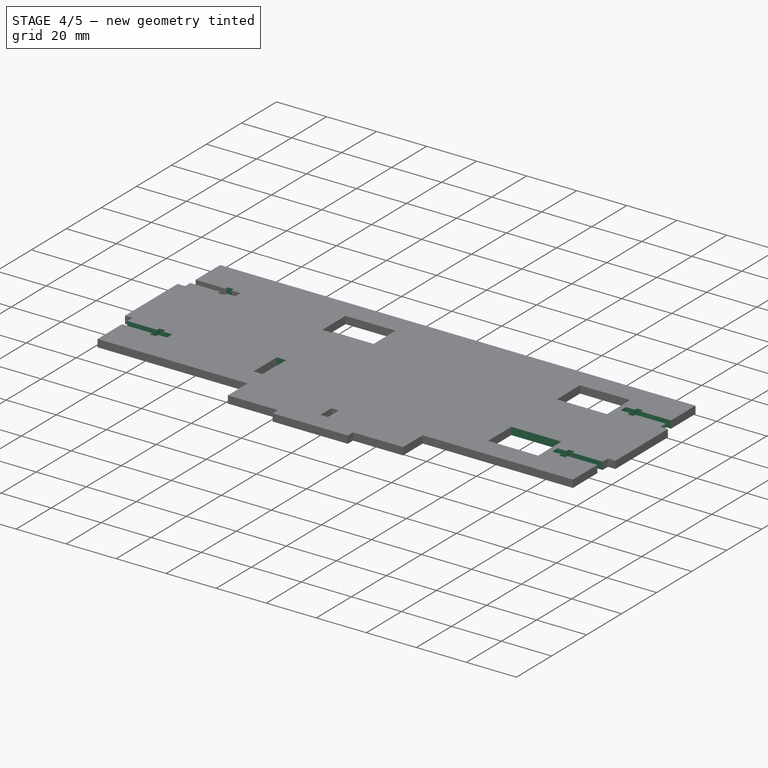
[diagram: stage 4 of 5 — iso view after this stage's code; geometry added in this stage tinted green]
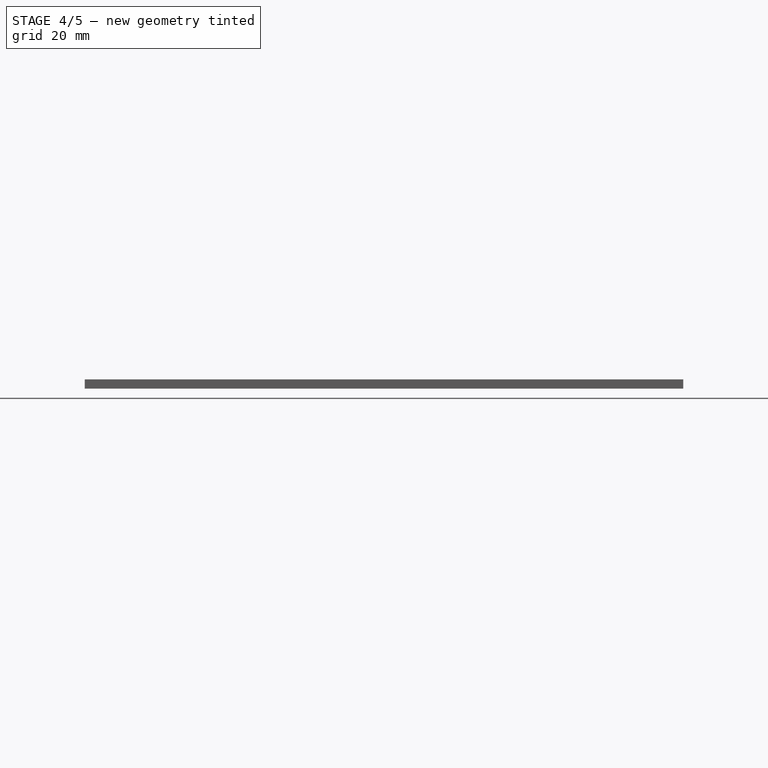
[diagram: stage 4 of 5 — front view after this stage's code; geometry added in this stage tinted green]
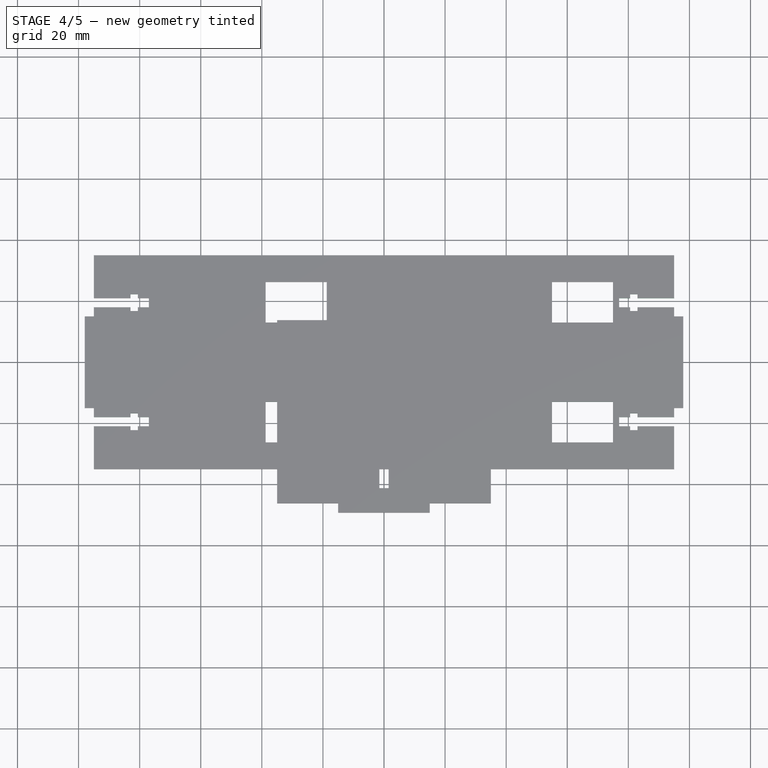
[diagram: stage 4 of 5 — top view after this stage's code; geometry added in this stage tinted green]
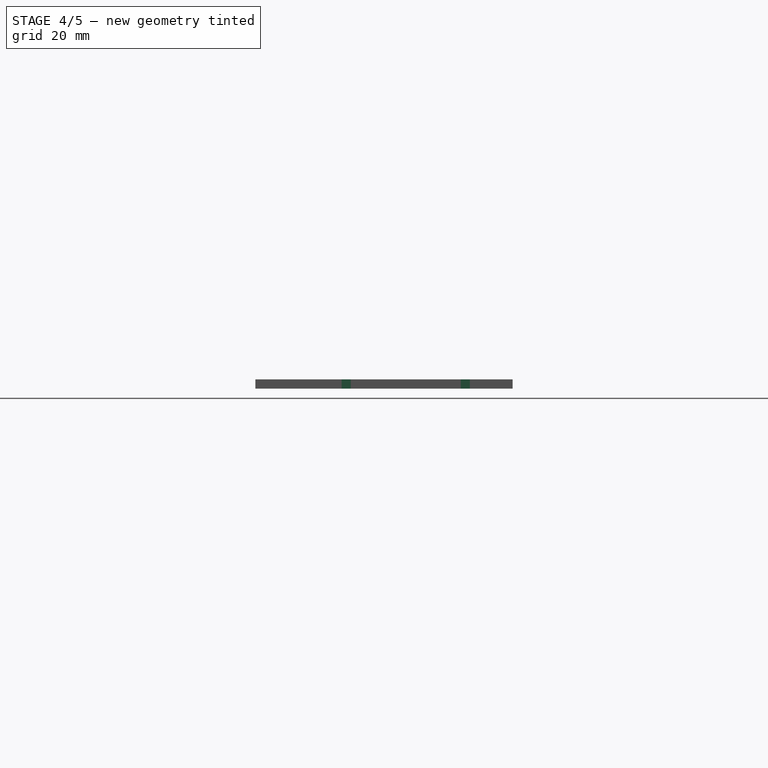
[diagram: stage 4 of 5 — right view after this stage's code; geometry added in this stage tinted green]
FEATURE [Sketcher::SketchObject] Sketch005
  MapMode = 5
  Support = -> [XY_Plane002]
  expr: Constraints[20] = values.run_length
  expr: Constraints[19] = carriage#values.tab_width
  expr: Constraints[10] = values.run_length + values.motor_length
  sketch-geometry (8):
    g0: LineSegment StartX=-95 StartY=13 StartZ=0 EndX=95 EndY=13 EndZ=0
    g1: LineSegment StartX=95 StartY=13 StartZ=0 EndX=95 EndY=-13 EndZ=0
    g2: LineSegment StartX=95 StartY=-13 StartZ=0 EndX=-95 EndY=-13 EndZ=0
    g3: LineSegment StartX=-95 StartY=-13 StartZ=0 EndX=-95 EndY=13 EndZ=0
    g4: LineSegment StartX=-65 StartY=3 StartZ=0 EndX=85 EndY=3 EndZ=0
    g5: LineSegment StartX=85 StartY=3 StartZ=0 EndX=85 EndY=-3 EndZ=0
    g6: LineSegment StartX=85 StartY=-3 StartZ=0 EndX=-65 EndY=-3 EndZ=0
    g7: LineSegment StartX=-65 StartY=-3 StartZ=0 EndX=-65 EndY=3 EndZ=0
  constraints (22):
    c: Coincident(g0,g1)
    c: Coincident(g1,g2)
    c: Coincident(g2,g3)
    c: Coincident(g3,g0)
    c: Horizontal(g0)
    c: Horizontal(g2)
    c: Vertical(g1)
    c: Vertical(g3)
    c: Symmetric(g0,g2,g-1)
    c: DistanceY(g3,g3) = 26
    c: DistanceX(g0,g0) = 190
    c: Coincident(g4,g5)
    c: Coincident(g5,g6)
    c: Coincident(g6,g7)
    c: Coincident(g7,g4)
    c: Horizontal(g4)
    c: Horizontal(g6)
    c: Vertical(g5)
    c: Symmetric(g4,g6,g-1)
    c: DistanceY(g5,g5) = 6
    c: DistanceX(g4,g4) = 150
    c: DistanceX(g4,g0) = 10
FEATURE [PartDesign::Pad] Pad002
  Length = 3
  Length2 = 100
  Profile = -> Sketch005
  Refine = true
  Type = 0
FEATURE [Sketcher::SketchObject] Sketch006
  ExternalGeometry = -> [Pad002]
  MapMode = 5
  Placement = pos=(95,0,0) rot=(0.57735,0.57735,0.57735;2.0944rad)
  Support = -> [Pad002]
  sketch-geometry (4):
    g0: LineSegment StartX=-5 StartY=3 StartZ=0 EndX=5 EndY=3 EndZ=0
    g1: LineSegment StartX=5 StartY=3 StartZ=0 EndX=5 EndY=0 EndZ=0
    g2: LineSegment StartX=5 StartY=0 StartZ=0 EndX=-5 EndY=0 EndZ=0
    g3: LineSegment StartX=-5 StartY=0 StartZ=0 EndX=-5 EndY=3 EndZ=0
  constraints (11):
    c: Coincident(g0,g1)
    c: Coincident(g1,g2)
    c: Coincident(g2,g3)
    c: Coincident(g3,g0)
    c: Horizontal(g0)
    c: Vertical(g1)
    c: Vertical(g3)
    c: DistanceX(g0,g0) = 10
    c: Symmetric(g2,g1,g-2)
    c: PointOnObject(g0,g-3)
    c: PointOnObject(g1,g-4)
FEATURE [PartDesign::Pad] Pad003
  BaseFeature = -> Pad002
  Length = 3
  Length2 = 100
  Profile = -> Sketch006
  Refine = true
  Type = 0
FEATURE [PartDesign::Mirrored] Mirrored002
  BaseFeature = -> Pad003
  MirrorPlane = -> YZ_Plane002
  Originals = -> [Pad003]
  Refine = true
FEATURE [TechDraw::DrawSVGTemplate] Template
  Height = 210
  Orientation = 1
  Width = 297
FEATURE [Spreadsheet::Sheet] Spreadsheet  label="values"
  cells = A1=Width; B1(width)=70; A2=Length; B2(length)=220; A3=Height; B3(height)=60; A5=Motor Length; B5(motor_length)=40; A6=Run Length; B6(run_length)=150; A8=Far offset; B8(far_offset)=10; A9=Near offset
FEATURE [TechDraw::DrawViewPart] View
  CoarseView = false
  Direction = (0,0,1)
  Focus = 100
  HardHidden = false
  IsoCount = 0
  IsoHidden = false
  IsoVisible = false
  LockPosition = false
  Perspective = false
  Rotation = 0
  ScaleType = 0
  SeamHidden = false
  SeamVisible = false
  SmoothHidden = false
  SmoothVisible = false
  Source = -> [Body]
  X = 113.927
  Y = 168.598
FEATURE [Sketcher::SketchObject] Sketch022
  ExternalGeometry = -> [Mirrored002]
  MapMode = 5
  Placement = pos=(0,0,3) rot=(0,0,1;0rad)
  Support = -> [Mirrored002]
  sketch-geometry (4):
    g0: LineSegment StartX=-95 StartY=10 StartZ=0 EndX=-77 EndY=10 EndZ=0
    g1: LineSegment StartX=-77 StartY=10 StartZ=0 EndX=-77 EndY=7 EndZ=0
    g2: LineSegment StartX=-77 StartY=7 StartZ=0 EndX=-95 EndY=7 EndZ=0
    g3: LineSegment StartX=-95 StartY=7 StartZ=0 EndX=-95 EndY=10 EndZ=0
  constraints (12):
    c: Coincident(g0,g1)
    c: Coincident(g1,g2)
    c: Coincident(g2,g3)
    c: Coincident(g3,g0)
    c: Horizontal(g0)
    c: Horizontal(g2)
    c: Vertical(g1)
    c: Vertical(g3)
    c: PointOnObject(g0,g-3)
    c: DistanceX(g0,g0) = 18
    c: DistanceY(g1,g1) = 3
    c: DistanceY(g-3,g2) = 2
FEATURE [PartDesign::Pocket] Pocket006
  BaseFeature = -> Mirrored002
  Length = 5
  Length2 = 100
  Profile = -> Sketch022
  Refine = true
  Type = 1
FEATURE [Sketcher::SketchObject] Sketch025
  ExternalGeometry = -> [Pocket008]
  MapMode = 5
  Placement = pos=(0,0,3) rot=(0,0,1;0rad)
  Support = -> [Pocket008]
  sketch-geometry (4):
    g0: LineSegment StartX=-83 StartY=22.25 StartZ=0 EndX=-80.6 EndY=22.25 EndZ=0
    g1: LineSegment StartX=-80.6 StartY=22.25 StartZ=0 EndX=-80.6 EndY=16.75 EndZ=0
    g2: LineSegment StartX=-80.6 StartY=16.75 StartZ=0 EndX=-83 EndY=16.75 EndZ=0
    g3: LineSegment StartX=-83 StartY=16.75 StartZ=0 EndX=-83 EndY=22.25 EndZ=0
  constraints (12):
    c: Coincident(g0,g1)
    c: Coincident(g1,g2)
    c: Coincident(g2,g3)
    c: Coincident(g3,g0)
    c: Horizontal(g0)
    c: Horizontal(g2)
    c: Vertical(g1)
    c: Vertical(g3)
    c: DistanceY(g3,g3) = 5.5
    c: DistanceY(g2,g-3) = 1.25
    c: DistanceX(g2,g2) = 2.4
    c: DistanceX(g-3,g2) = 12
FEATURE [PartDesign::Mirrored] Mirrored007
  MirrorPlane = -> Sketch024 [V_Axis]
  Refine = true
FEATURE [PartDesign::Mirrored] Mirrored008
  MirrorPlane = -> Sketch024 [H_Axis]
  Refine = true
FEATURE [PartDesign::MultiTransform] MultiTransform002
  BaseFeature = -> Pocket008
  Originals = -> [Pocket008]
  Refine = true
  Transformations = -> [Mirrored007,Mirrored008]
FEATURE [PartDesign::Pocket] Pocket009
  BaseFeature = -> MultiTransform002
  Length = 5
  Length2 = 100
  Profile = -> Sketch025
  Refine = true
  Type = 1
FEATURE [PartDesign::Mirrored] Mirrored009
  MirrorPlane = -> Sketch025 [V_Axis]
  Refine = true
FEATURE [PartDesign::Mirrored] Mirrored010
  MirrorPlane = -> Sketch025 [H_Axis]
  Refine = true
FEATURE [PartDesign::MultiTransform] MultiTransform003
  BaseFeature = -> Pocket009
  Originals = -> [Pocket009]
  Refine = true
  Transformations = -> [Mirrored009,Mirrored010]
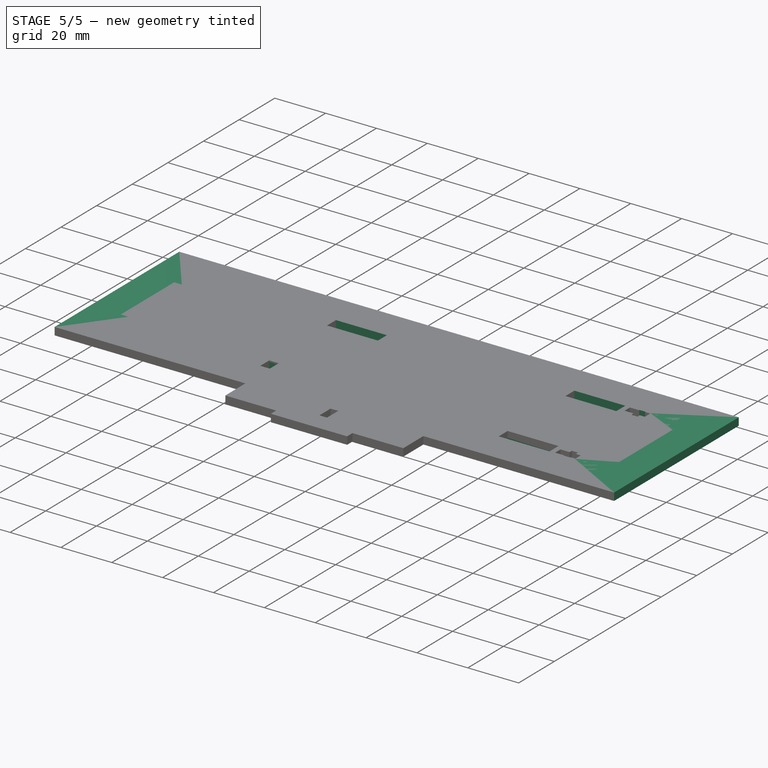
[diagram: stage 5 of 5 — iso view after this stage's code; geometry added in this stage tinted green]
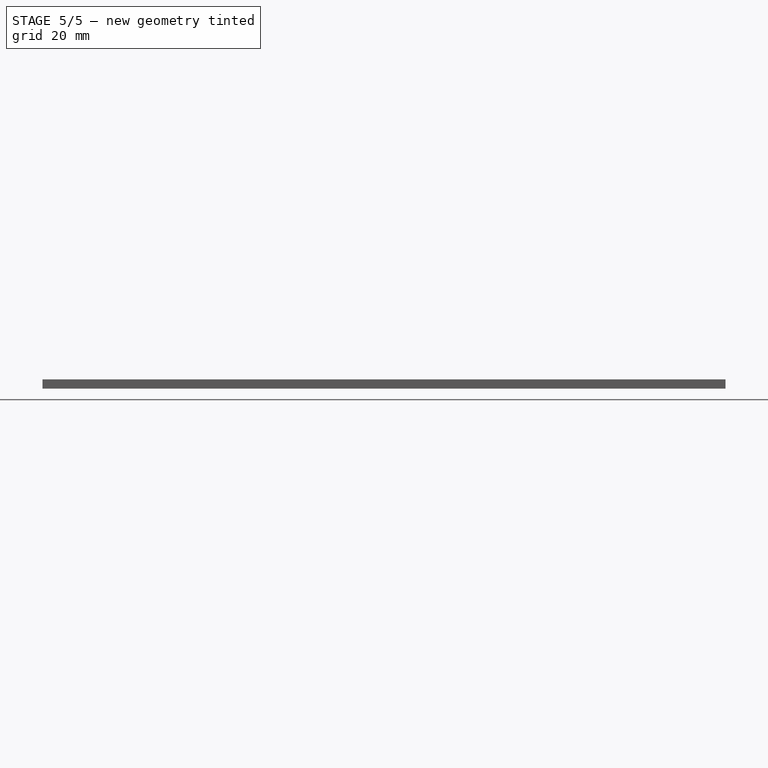
[diagram: stage 5 of 5 — front view after this stage's code; geometry added in this stage tinted green]
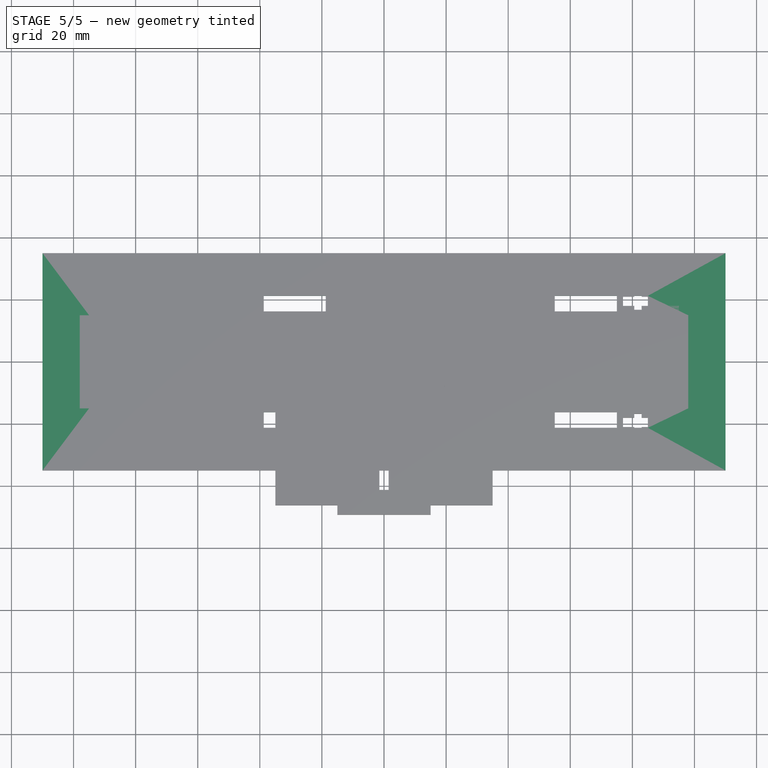
[diagram: stage 5 of 5 — top view after this stage's code; geometry added in this stage tinted green]
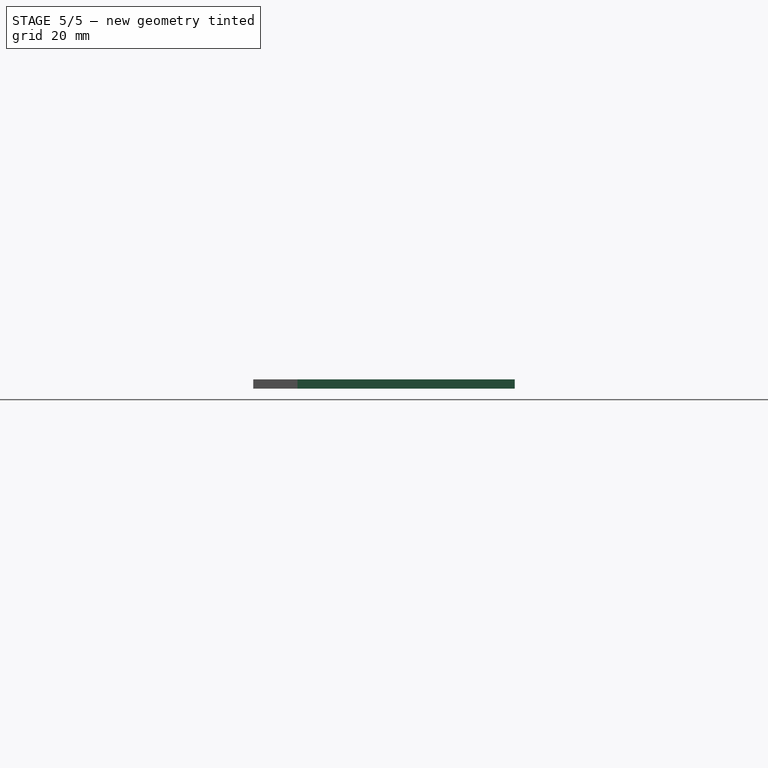
[diagram: stage 5 of 5 — right view after this stage's code; geometry added in this stage tinted green]
FEATURE [Sketcher::SketchObject] Sketch
  MapMode = 5
  Support = -> [XY_Plane]
  expr: Constraints[19] = values.run_length
  expr: Constraints[20] = carriage#values.tab_width
  expr: Constraints.length = values.length
  expr: Constraints[17] = values.width
  sketch-geometry (8):
    g0: LineSegment StartX=-110 StartY=35 StartZ=0 EndX=110 EndY=35 EndZ=0
    g1: LineSegment StartX=110 StartY=35 StartZ=0 EndX=110 EndY=-35 EndZ=0
    g2: LineSegment StartX=110 StartY=-35 StartZ=0 EndX=-110 EndY=-35 EndZ=0
    g3: LineSegment StartX=-110 StartY=-35 StartZ=0 EndX=-110 EndY=35 EndZ=0
    g4: LineSegment StartX=-65 StartY=3 StartZ=0 EndX=85 EndY=3 EndZ=0
    g5: LineSegment StartX=85 StartY=3 StartZ=0 EndX=85 EndY=-3 EndZ=0
    g6: LineSegment StartX=85 StartY=-3 StartZ=0 EndX=-65 EndY=-3 EndZ=0
    g7: LineSegment StartX=-65 StartY=-3 StartZ=0 EndX=-65 EndY=3 EndZ=0
  constraints (22):
    c: Coincident(g0,g1)
    c: Coincident(g1,g2)
    c: Coincident(g2,g3)
    c: Coincident(g3,g0)
    c: Horizontal(g0)
    c: Horizontal(g2)
    c: Vertical(g1)
    c: Vertical(g3)
    c: Symmetric(g2,g0,g-1)
    c: Coincident(g4,g5)
    c: Coincident(g5,g6)
    c: Coincident(g6,g7)
    c: Coincident(g7,g4)
    c: Horizontal(g4)
    c: Horizontal(g6)
    c: Vertical(g5)
    c: Symmetric(g4,g6,g-1)
    c: DistanceY(g3,g3) = 70
    c: DistanceX(g0,g0) = 220  'length'
    c: DistanceX(g4,g4) = 150
    c: DistanceY(g5,g5) = 6
    c: DistanceX(g4,g0) = 25
FEATURE [PartDesign::Pad] Pad
  Length = 3
  Length2 = 100
  Profile = -> Sketch
  Refine = true
  Type = 0
FEATURE [Sketcher::SketchObject] Sketch001
  ExternalGeometry = -> [Pad]
  MapMode = 5
  Placement = pos=(0,0,3) rot=(0,0,1;0rad)
  Support = -> [Pad]
  expr: Constraints[9] = carriage#values.overall_width / 2
  sketch-geometry (4):
    g0: LineSegment StartX=-65 StartY=21.25 StartZ=0 EndX=85 EndY=21.25 EndZ=0
    g1: LineSegment StartX=85 StartY=21.25 StartZ=0 EndX=85 EndY=16.25 EndZ=0
    g2: LineSegment StartX=85 StartY=16.25 StartZ=0 EndX=-65 EndY=16.25 EndZ=0
    g3: LineSegment StartX=-65 StartY=16.25 StartZ=0 EndX=-65 EndY=21.25 EndZ=0
  constraints (12):
    c: Coincident(g0,g1)
    c: Coincident(g1,g2)
    c: Coincident(g2,g3)
    c: Coincident(g3,g0)
    c: Horizontal(g0)
    c: Horizontal(g2)
    c: Vertical(g1)
    c: Vertical(g3)
    c: Vertical(g2,g-3)
    c: DistanceY(g-1,g2) = 16.25
    c: DistanceY(g1,g1) = 5
    c: Vertical(g1,g-3)
FEATURE [PartDesign::Pocket] Pocket
  BaseFeature = -> Pad
  Length = 5
  Length2 = 100
  Profile = -> Sketch001
  Refine = true
  Type = 1
FEATURE [PartDesign::Mirrored] Mirrored
  BaseFeature = -> Pocket
  MirrorPlane = -> Sketch001 [H_Axis]
  Originals = -> [Pocket]
  Refine = true
FEATURE [Sketcher::SketchObject] Sketch017
  ExternalGeometry = -> [Mirrored]
  MapMode = 5
  Placement = pos=(0,0,3) rot=(0,0,1;0rad)
  Support = -> [Mirrored]
  expr: Constraints[20] = values.run_length + values.motor_length
  sketch-geometry (8):
    g0: LineSegment StartX=95 StartY=15 StartZ=0 EndX=98 EndY=15 EndZ=0
    g1: LineSegment StartX=98 StartY=15 StartZ=0 EndX=98 EndY=-15 EndZ=0
    g2: LineSegment StartX=98 StartY=-15 StartZ=0 EndX=95 EndY=-15 EndZ=0
    g3: LineSegment StartX=95 StartY=-15 StartZ=0 EndX=95 EndY=15 EndZ=0
    g4: LineSegment StartX=-98 StartY=15 StartZ=0 EndX=-95 EndY=15 EndZ=0
    g5: LineSegment StartX=-95 StartY=15 StartZ=0 EndX=-95 EndY=-15 EndZ=0
    g6: LineSegment StartX=-95 StartY=-15 StartZ=0 EndX=-98 EndY=-15 EndZ=0
    g7: LineSegment StartX=-98 StartY=-15 StartZ=0 EndX=-98 EndY=15 EndZ=0
  constraints (23):
    c: Coincident(g0,g1)
    c: Coincident(g1,g2)
    c: Coincident(g2,g3)
    c: Coincident(g3,g0)
    c: Horizontal(g0)
    c: Horizontal(g2)
    c: Vertical(g3)
    c: Symmetric(g1,g0,g-1)
    c: Coincident(g4,g5)
    c: Coincident(g5,g6)
    c: Coincident(g6,g7)
    c: Coincident(g7,g4)
    c: Horizontal(g4)
    c: Horizontal(g6)
    c: Vertical(g5)
    c: Symmetric(g6,g4,g-1)
    c: Equal(g5,g3)
    c: DistanceY(g1,g1) = 30
    c: DistanceX(g0,g0) = 3
    c: Equal(g4,g0)
    c: DistanceX(g5,g2) = 190
    c: DistanceX(g-4,g2) = 10
    c: DistanceX(g4,g-5) = 30  'far_offset'
FEATURE [PartDesign::Pocket] Pocket004
  BaseFeature = -> Mirrored
  Length = 5
  Length2 = 100
  Profile = -> Sketch017
  Refine = true
  Type = 1
FEATURE [PartDesign::Mirrored] Mirrored003
  MirrorPlane = -> Sketch022 [V_Axis]
  Refine = true
FEATURE [PartDesign::Mirrored] Mirrored004
  MirrorPlane = -> Sketch022 [H_Axis]
  Refine = true
FEATURE [PartDesign::MultiTransform] MultiTransform
  BaseFeature = -> Pocket006
  Originals = -> [Pocket006]
  Refine = true
  Transformations = -> [Mirrored003,Mirrored004]
FEATURE [Sketcher::SketchObject] Sketch023
  ExternalGeometry = -> [MultiTransform]
  MapMode = 5
  Placement = pos=(0,0,3) rot=(0,0,1;0rad)
  Support = -> [MultiTransform]
  sketch-geometry (4):
    g0: LineSegment StartX=-83 StartY=11.25 StartZ=0 EndX=-80.6 EndY=11.25 EndZ=0
    g1: LineSegment StartX=-80.6 StartY=11.25 StartZ=0 EndX=-80.6 EndY=5.75 EndZ=0
    g2: LineSegment StartX=-80.6 StartY=5.75 StartZ=0 EndX=-83 EndY=5.75 EndZ=0
    g3: LineSegment StartX=-83 StartY=5.75 StartZ=0 EndX=-83 EndY=11.25 EndZ=0
  constraints (12):
    c: Coincident(g0,g1)
    c: Coincident(g1,g2)
    c: Coincident(g2,g3)
    c: Coincident(g3,g0)
    c: Horizontal(g0)
    c: Horizontal(g2)
    c: Vertical(g1)
    c: Vertical(g3)
    c: DistanceY(g1,g1) = 5.5
    c: DistanceY(g1,g-3) = 1.25
    c: DistanceX(g2,g2) = 2.4
    c: DistanceX(g-3,g2) = 12
FEATURE [PartDesign::Pocket] Pocket007
  BaseFeature = -> MultiTransform
  Length = 5
  Length2 = 100
  Profile = -> Sketch023
  Refine = true
  Type = 1
FEATURE [PartDesign::Mirrored] Mirrored005
  MirrorPlane = -> Sketch023 [V_Axis]
  Refine = true
FEATURE [PartDesign::Mirrored] Mirrored006
  MirrorPlane = -> Sketch023 [H_Axis]
  Refine = true
FEATURE [PartDesign::MultiTransform] MultiTransform001
  BaseFeature = -> Pocket007
  Originals = -> [Pocket007]
  Refine = true
  Transformations = -> [Mirrored005,Mirrored006]
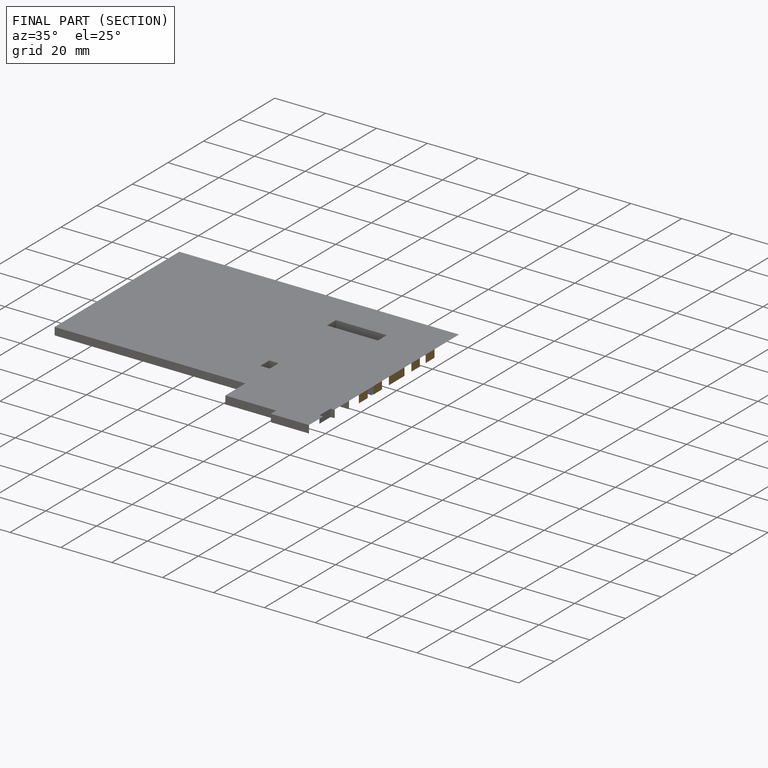
[diagram: finished part — half-section view (interior)]
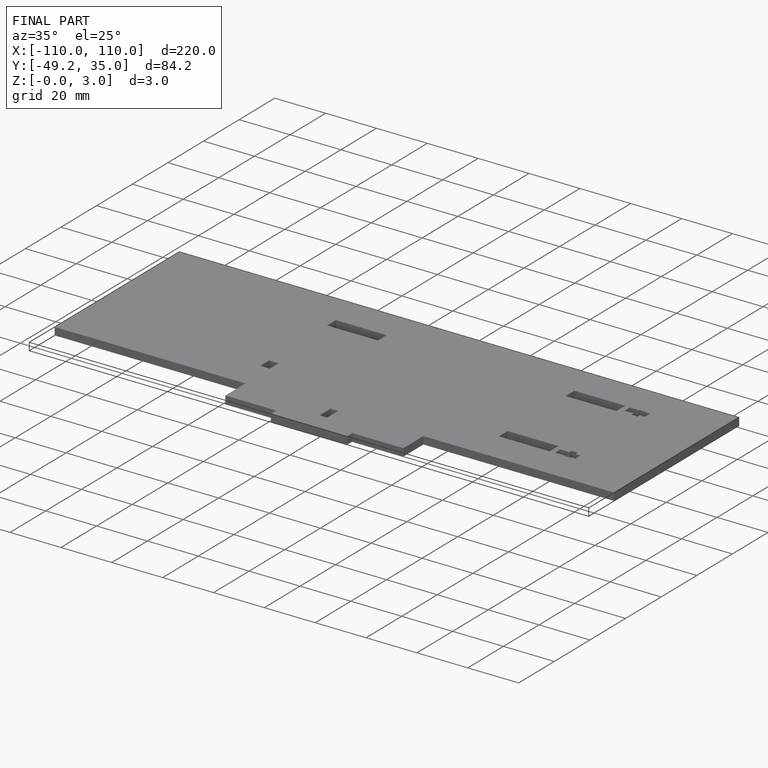
[diagram: finished part — iso view with bounding-box wireframe]
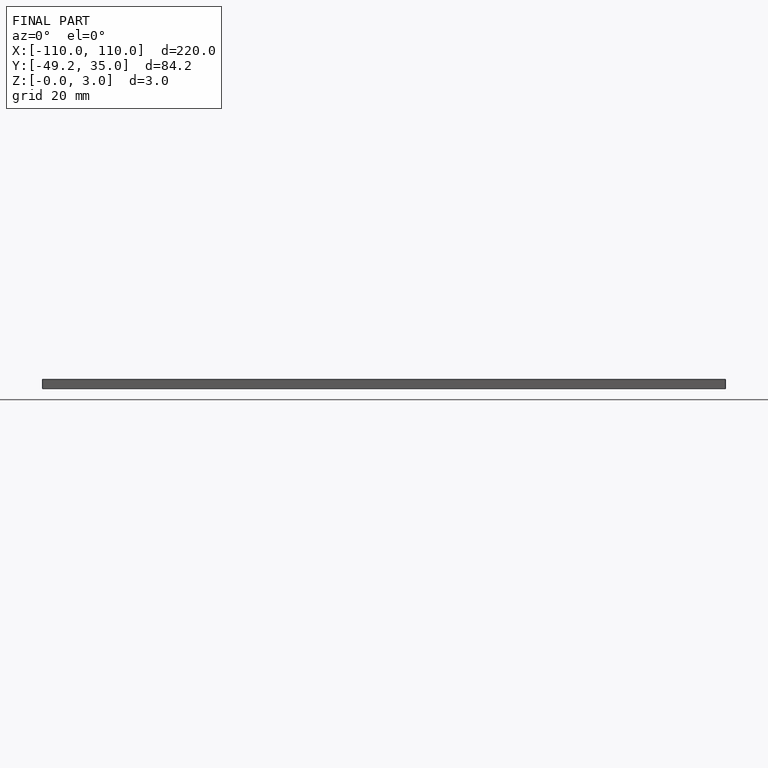
[diagram: finished part — front view with bounding-box wireframe]
